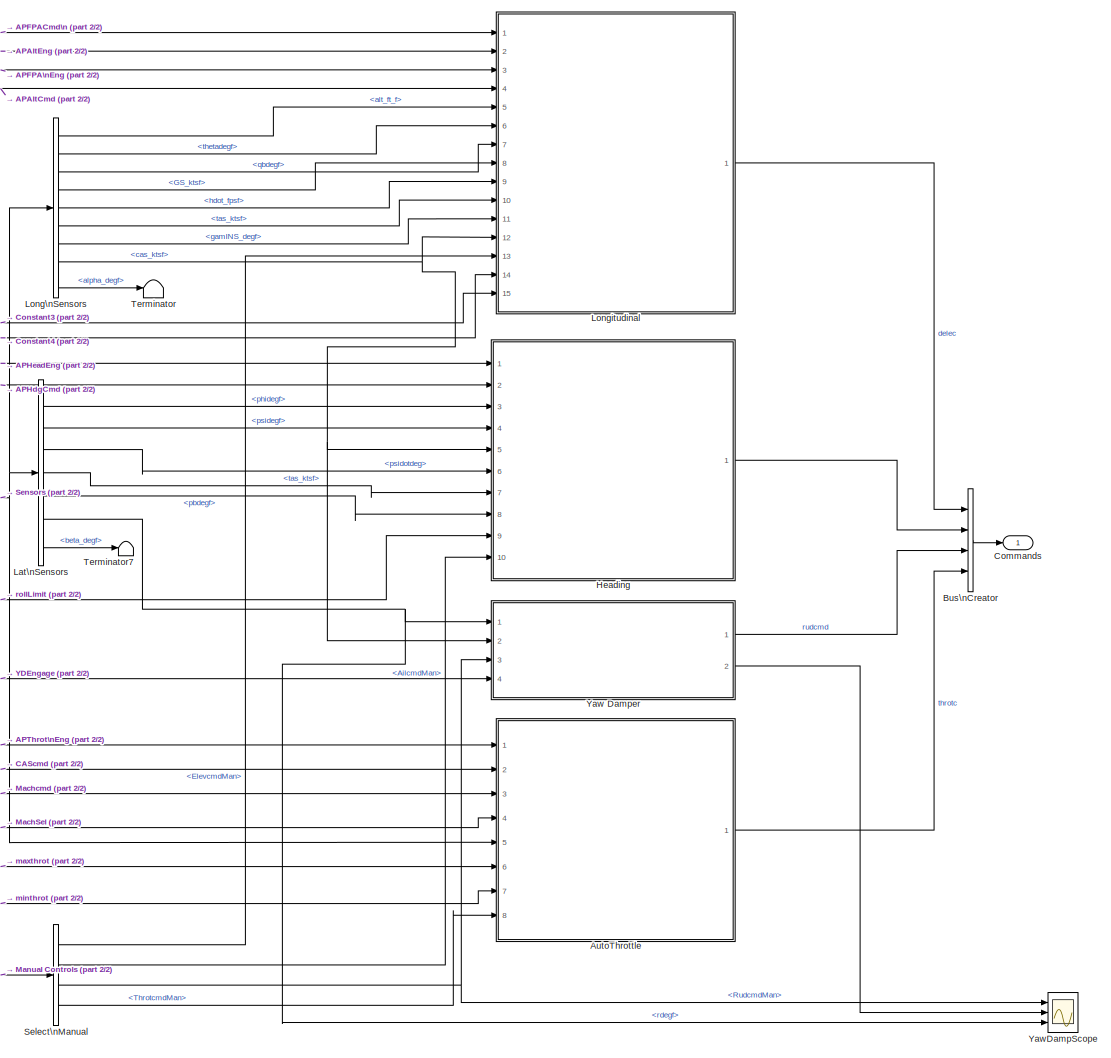
[diagram: root canvas - part 1/2, center side, full height]
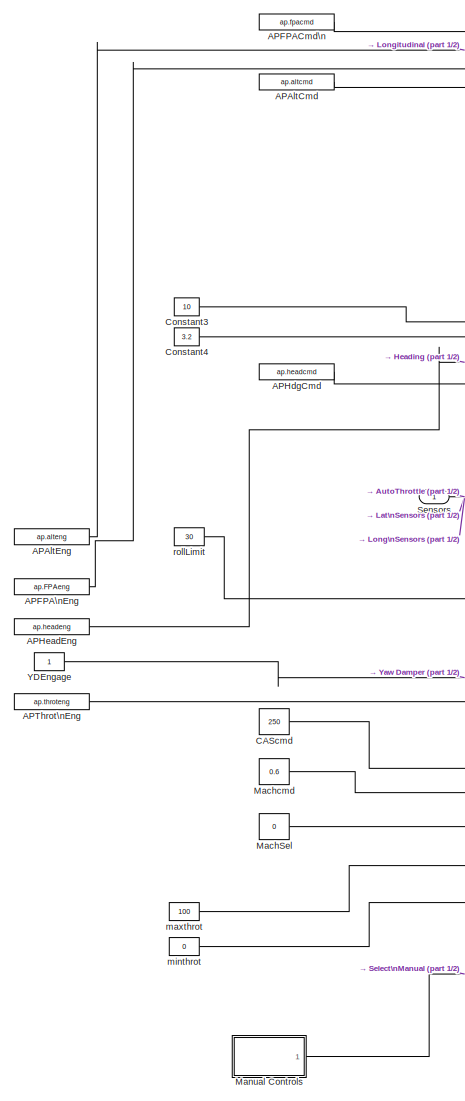
[diagram: root canvas - part 2/2, left side, full height]
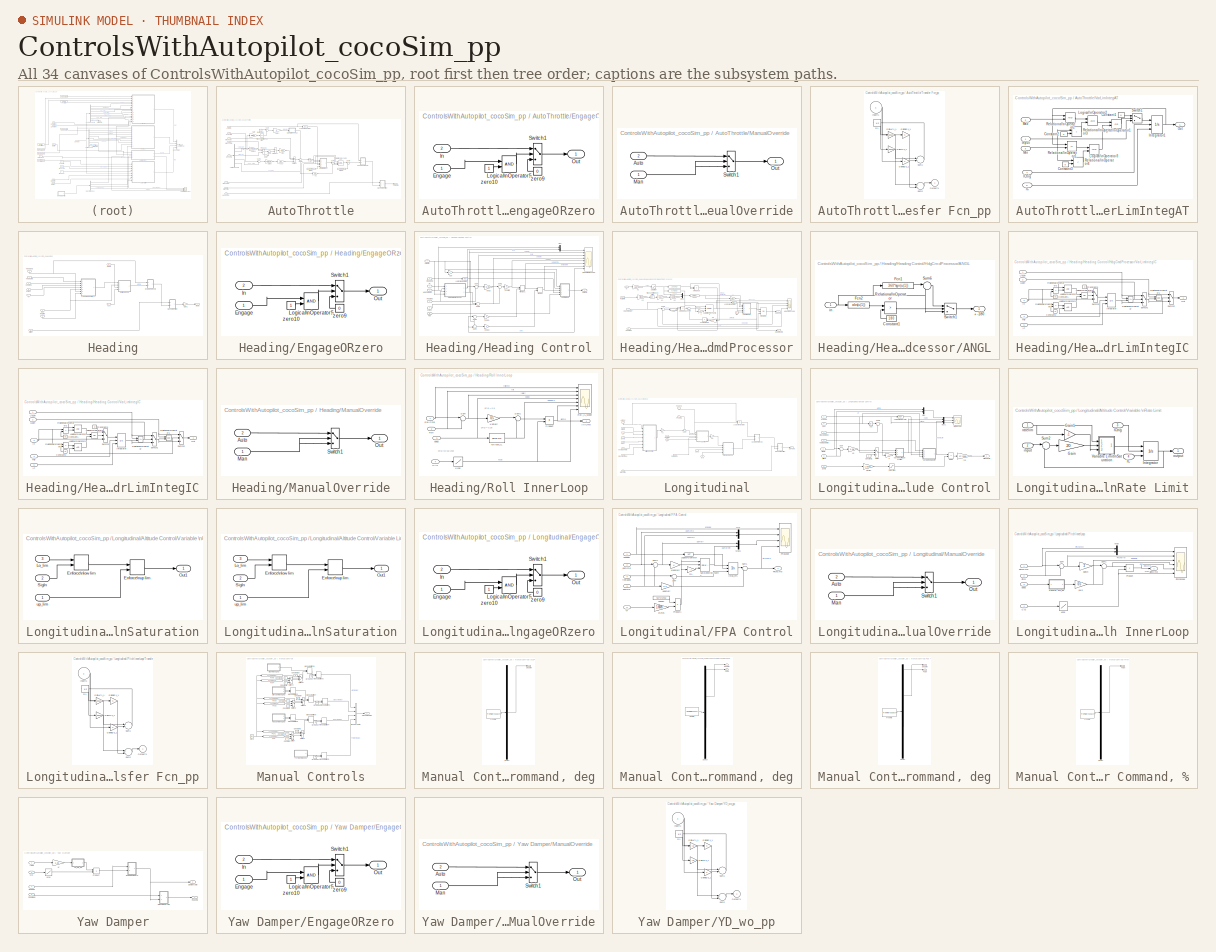
[diagram: thumbnail index - all 34 canvases of the model, root first then tree order]
MODEL ControlsWithAutopilot_cocoSim_pp
KIND model
BLOCK [Constant] APAltCmd
  SID = 2
  Value = ap.altcmd
BLOCK [Constant] APAltEng
  OutDataTypeStr = boolean
  SID = 3
  Value = ap.alteng
BLOCK [Constant] APFPACmd\n
  SID = 5
  Value = ap.fpacmd
BLOCK [Constant] APFPA\nEng
  OutDataTypeStr = boolean
  SID = 4
  Value = ap.FPAeng
BLOCK [Constant] APHdgCmd
  SID = 6
  Value = ap.headcmd
BLOCK [Constant] APHeadEng
  OutDataTypeStr = boolean
  SID = 7
  Value = ap.headeng
BLOCK [Constant] APThrot\nEng
  OutDataTypeStr = boolean
  SID = 8
  Value = ap.throteng
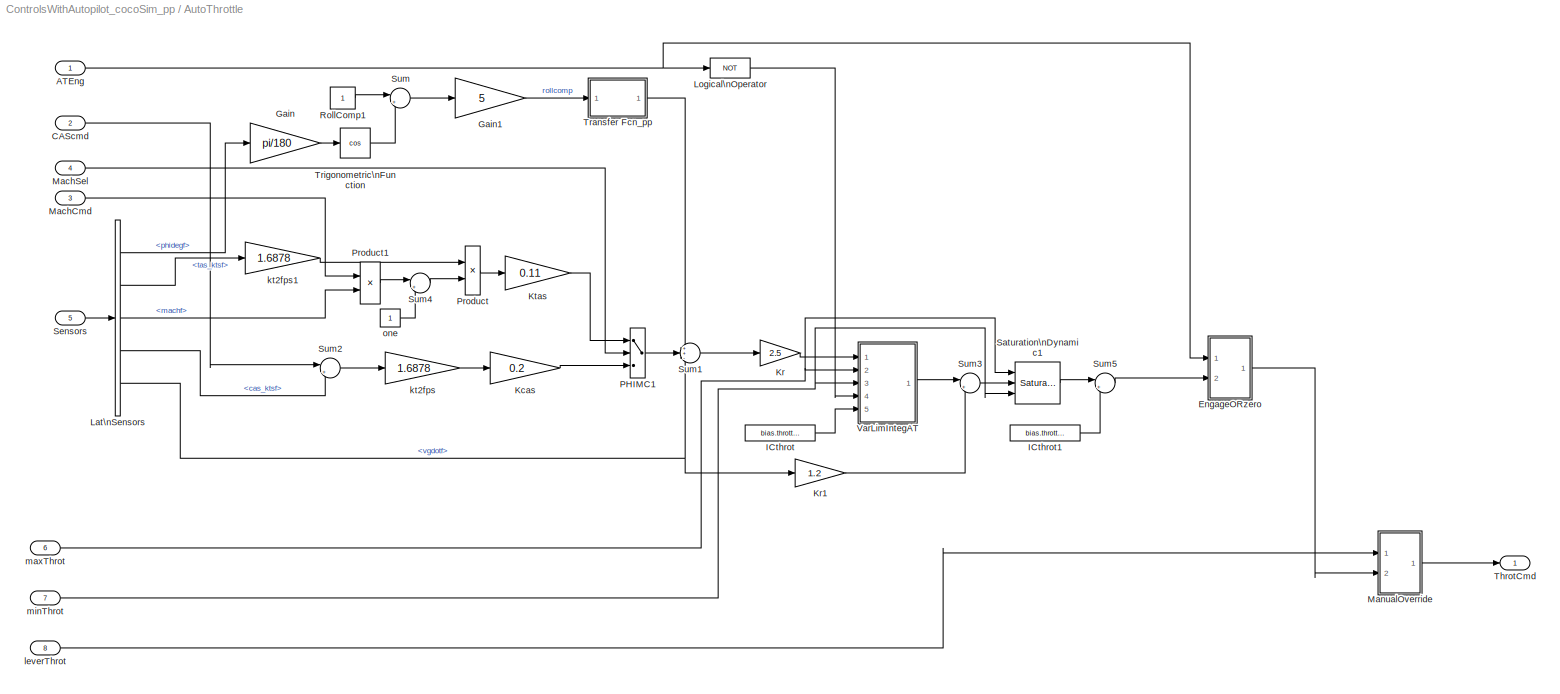
BLOCK [SubSystem] AutoThrottle
  Ports = [8, 1]
  RequestExecContextInheritance = off
  SID = 59
  Variant = off
BLOCK [Inport] AutoThrottle/ATEng
  IconDisplay = Port number
  SID = 60
BLOCK [Inport] AutoThrottle/CAScmd
  IconDisplay = Port number
  Port = 2
  SID = 61
BLOCK [SubSystem] AutoThrottle/EngageORzero
  Ports = [2, 1]
  RequestExecContextInheritance = off
  SID = 609
  Variant = off
BLOCK [Inport] AutoThrottle/EngageORzero/Engage
  IconDisplay = Port number
  SID = 610
BLOCK [Inport] AutoThrottle/EngageORzero/In
  IconDisplay = Port number
  Port = 2
  SID = 611
BLOCK [Logic] AutoThrottle/EngageORzero/Logical\nOperator5
  AllPortsSameDT = off
  OutDataTypeStr = boolean
  Ports = [2, 1]
  SID = 612
BLOCK [Outport] AutoThrottle/EngageORzero/Out
  IconDisplay = Port number
  SID = 616
BLOCK [Switch] AutoThrottle/EngageORzero/Switch1
  InputSameDT = off
  SID = 613
  SaturateOnIntegerOverflow = off
  Threshold = 0.5
BLOCK [Constant] AutoThrottle/EngageORzero/zero10
  SID = 614
BLOCK [Constant] AutoThrottle/EngageORzero/zero9
  SID = 615
  Value = 0
BLOCK [Gain] AutoThrottle/Gain
  Gain = pi/180
  OutDataTypeStr = Inherit: Inherit via internal rule
  ParamDataTypeStr = Inherit: Inherit via internal rule
  SID = 65
  SaturateOnIntegerOverflow = off
BLOCK [Gain] AutoThrottle/Gain1
  Gain = 5
  OutDataTypeStr = Inherit: Inherit via internal rule
  ParamDataTypeStr = Inherit: Inherit via internal rule
  SID = 66
  SaturateOnIntegerOverflow = off
BLOCK [Constant] AutoThrottle/ICthrot
  SID = 67
  SampleTime = -1
  Value = bias.throttle
BLOCK [Constant] AutoThrottle/ICthrot1
  SID = 68
  SampleTime = -1
  Value = bias.throttle
BLOCK [Gain] AutoThrottle/Kcas
  Gain = 0.2
  OutDataTypeStr = Inherit: Inherit via internal rule
  ParamDataTypeStr = Inherit: Inherit via internal rule
  SID = 69
  SaturateOnIntegerOverflow = off
BLOCK [Gain] AutoThrottle/Kr
  Gain = 2.5
  OutDataTypeStr = Inherit: Inherit via internal rule
  ParamDataTypeStr = Inherit: Inherit via internal rule
  SID = 70
  SaturateOnIntegerOverflow = off
BLOCK [Gain] AutoThrottle/Kr1
  Gain = 1.2
  OutDataTypeStr = Inherit: Inherit via internal rule
  ParamDataTypeStr = Inherit: Inherit via internal rule
  SID = 71
  SaturateOnIntegerOverflow = off
BLOCK [Gain] AutoThrottle/Ktas
  Gain = 0.11
  OutDataTypeStr = Inherit: Inherit via internal rule
  ParamDataTypeStr = Inherit: Inherit via internal rule
  SID = 72
  SaturateOnIntegerOverflow = off
BLOCK [BusSelector] AutoThrottle/Lat\nSensors
  OutputSignals = phidegf,tas_ktsf,machf,cas_ktsf,vgdotf
  Ports = [1, 5]
  SID = 73
BLOCK [Logic] AutoThrottle/Logical\nOperator
  AllPortsSameDT = off
  Operator = NOT
  OutDataTypeStr = boolean
  Ports = [1, 1]
  SID = 74
BLOCK [Inport] AutoThrottle/MachCmd
  IconDisplay = Port number
  Port = 3
  SID = 62
BLOCK [Inport] AutoThrottle/MachSel
  IconDisplay = Port number
  Port = 4
  SID = 63
BLOCK [SubSystem] AutoThrottle/ManualOverride
  Ports = [2, 1]
  RequestExecContextInheritance = off
  SID = 558
  Variant = off
BLOCK [Inport] AutoThrottle/ManualOverride/Auto
  IconDisplay = Port number
  Port = 2
  SID = 560
BLOCK [Inport] AutoThrottle/ManualOverride/Man
  IconDisplay = Port number
  SID = 559
BLOCK [Outport] AutoThrottle/ManualOverride/Out
  IconDisplay = Port number
  SID = 562
BLOCK [Switch] AutoThrottle/ManualOverride/Switch1
  Criteria = u2 ~= 0
  InputSameDT = off
  SID = 561
  SaturateOnIntegerOverflow = off
  Threshold = 0.5
BLOCK [Switch] AutoThrottle/PHIMC1
  InputSameDT = off
  SID = 75
  SampleTime = 0.02
  Threshold = 0.5
BLOCK [Product] AutoThrottle/Product
  InputSameDT = off
  OutDataTypeStr = Inherit: Inherit via internal rule
  Ports = [2, 1]
  SID = 76
  SaturateOnIntegerOverflow = off
BLOCK [Product] AutoThrottle/Product1
  InputSameDT = off
  Inputs = */
  OutDataTypeStr = Inherit: Inherit via internal rule
  Ports = [2, 1]
  SID = 77
  SaturateOnIntegerOverflow = off
BLOCK [Constant] AutoThrottle/RollComp1
  SID = 78
  SampleTime = -1
BLOCK [Reference] AutoThrottle/Saturation\nDynamic1  REF=simulink/Discontinuities/Saturation\nDynamic
  DoSatur = off
  LockScale = off
  OutDataType = sfix(16)
  OutDataTypeStr = Inherit: Same as second input
  OutMax = []
  OutMin = []
  OutScaling = 2^-10
  OutputDataTypeScalingMode = Same as second input
  Ports = [3, 1]
  RndMeth = Floor
  SID = 79
  SourceBlock = simulink/Discontinuities/Saturation\nDynamic
  SourceType = Saturation Dynamic
BLOCK [Inport] AutoThrottle/Sensors
  IconDisplay = Port number
  Port = 5
  SID = 64
BLOCK [Sum] AutoThrottle/Sum
  IconShape = round
  InputSameDT = off
  Inputs = |+-
  OutDataTypeStr = Inherit: Inherit via internal rule
  Ports = [2, 1]
  SID = 80
  SaturateOnIntegerOverflow = off
BLOCK [Sum] AutoThrottle/Sum1
  IconShape = round
  InputSameDT = off
  Inputs = ++-
  OutDataTypeStr = Inherit: Inherit via internal rule
  Ports = [3, 1]
  SID = 81
  SaturateOnIntegerOverflow = off
BLOCK [Sum] AutoThrottle/Sum2
  IconShape = round
  InputSameDT = off
  Inputs = |+-
  OutDataTypeStr = Inherit: Inherit via internal rule
  Ports = [2, 1]
  SID = 82
  SaturateOnIntegerOverflow = off
BLOCK [Sum] AutoThrottle/Sum3
  IconShape = round
  InputSameDT = off
  Inputs = |+-
  OutDataTypeStr = Inherit: Inherit via internal rule
  Ports = [2, 1]
  SID = 83
  SaturateOnIntegerOverflow = off
BLOCK [Sum] AutoThrottle/Sum4
  IconShape = round
  InputSameDT = off
  Inputs = |+-
  OutDataTypeStr = Inherit: Inherit via internal rule
  Ports = [2, 1]
  SID = 84
  SaturateOnIntegerOverflow = off
BLOCK [Sum] AutoThrottle/Sum5
  IconShape = round
  InputSameDT = off
  Inputs = |+-
  OutDataTypeStr = Inherit: Inherit via internal rule
  Ports = [2, 1]
  SID = 85
  SaturateOnIntegerOverflow = off
BLOCK [Outport] AutoThrottle/ThrotCmd
  IconDisplay = Port number
  SID = 112
BLOCK [SubSystem] AutoThrottle/Transfer Fcn_pp
  Ports = [1, 1]
  RequestExecContextInheritance = off
  SID = 675
  TreatAsAtomicUnit = on
  Variant = off
BLOCK [UnitDelay] AutoThrottle/Transfer Fcn_pp/D1
  SID = 676
  SampleTime = -1
BLOCK [Gain] AutoThrottle/Transfer Fcn_pp/GainAC1_1
  Gain = -0.0625
  SID = 677
BLOCK [Gain] AutoThrottle/Transfer Fcn_pp/GainAC2_1
  Gain = -0.0625
  SID = 678
BLOCK [Gain] AutoThrottle/Transfer Fcn_pp/GainBD1_1
  SID = 679
BLOCK [Gain] AutoThrottle/Transfer Fcn_pp/GainBD2_1
  SID = 680
BLOCK [Inport] AutoThrottle/Transfer Fcn_pp/Inport1
  IconDisplay = Port number
  SID = 683
BLOCK [Outport] AutoThrottle/Transfer Fcn_pp/Outport1
  IconDisplay = Port number
  SID = 684
BLOCK [Sum] AutoThrottle/Transfer Fcn_pp/Sum1
  Ports = [2, 1]
  SID = 681
BLOCK [Sum] AutoThrottle/Transfer Fcn_pp/Sum2
  Ports = [2, 1]
  SID = 682
BLOCK [Trigonometry] AutoThrottle/Trigonometric\nFunction
  Operator = cos
  Ports = [1, 1]
  SID = 87
BLOCK [SubSystem] AutoThrottle/VarLimIntegAT
  Ports = [5, 1]
  RequestExecContextInheritance = off
  SID = 88
  Variant = off
BLOCK [Constant] AutoThrottle/VarLimIntegAT/Constant1
  SID = 94
  SampleTime = -1
  Value = 0
BLOCK [Constant] AutoThrottle/VarLimIntegAT/Constant2
  SID = 95
  SampleTime = -1
  Value = 0
BLOCK [Constant] AutoThrottle/VarLimIntegAT/Constant3
  SID = 96
  SampleTime = -1
  Value = 0
BLOCK [Inport] AutoThrottle/VarLimIntegAT/IC
  IconDisplay = Port number
  Port = 5
  SID = 93
BLOCK [Inport] AutoThrottle/VarLimIntegAT/ICtrig
  IconDisplay = Port number
  Port = 4
  SID = 92
BLOCK [Inport] AutoThrottle/VarLimIntegAT/Input
  IconDisplay = Port number
  SID = 89
BLOCK [Integrator] AutoThrottle/VarLimIntegAT/Integrator1
  ExternalReset = level
  InitialConditionSource = external
  Ports = [3, 1]
  SID = 97
BLOCK [Logic] AutoThrottle/VarLimIntegAT/Logical\nOperator1
  Operator = OR
  Ports = [2, 1]
  SID = 98
BLOCK [Logic] AutoThrottle/VarLimIntegAT/Logical\nOperator2
  Ports = [2, 1]
  SID = 99
BLOCK [Logic] AutoThrottle/VarLimIntegAT/Logical\nOperator3
  Ports = [2, 1]
  SID = 100
BLOCK [Inport] AutoThrottle/VarLimIntegAT/Max
  IconDisplay = Port number
  Port = 2
  SID = 90
BLOCK [Inport] AutoThrottle/VarLimIntegAT/Min
  IconDisplay = Port number
  Port = 3
  SID = 91
BLOCK [Outport] AutoThrottle/VarLimIntegAT/Out
  IconDisplay = Port number
  SID = 106
BLOCK [RelationalOperator] AutoThrottle/VarLimIntegAT/Relational\nOperator1
  Operator = <=
  Ports = [2, 1]
  SID = 101
BLOCK [RelationalOperator] AutoThrottle/VarLimIntegAT/Relational\nOperator2
  Ports = [2, 1]
  SID = 102
BLOCK [RelationalOperator] AutoThrottle/VarLimIntegAT/Relational\nOperator3
  Operator = >
  Ports = [2, 1]
  SID = 103
BLOCK [RelationalOperator] AutoThrottle/VarLimIntegAT/Relational\nOperator4
  Operator = <
  Ports = [2, 1]
  SID = 104
BLOCK [Switch] AutoThrottle/VarLimIntegAT/Switch1
  SID = 105
  Threshold = 0.1
BLOCK [Gain] AutoThrottle/kt2fps
  Gain = 1.6878
  OutDataTypeStr = Inherit: Inherit via internal rule
  ParamDataTypeStr = Inherit: Inherit via internal rule
  SID = 107
  SaturateOnIntegerOverflow = off
BLOCK [Gain] AutoThrottle/kt2fps1
  Gain = 1.6878
  OutDataTypeStr = Inherit: Inherit via internal rule
  ParamDataTypeStr = Inherit: Inherit via internal rule
  SID = 108
  SaturateOnIntegerOverflow = off
BLOCK [Inport] AutoThrottle/leverThrot
  IconDisplay = Port number
  Port = 8
  SID = 567
BLOCK [Inport] AutoThrottle/maxThrot
  IconDisplay = Port number
  Port = 6
  SID = 565
BLOCK [Inport] AutoThrottle/minThrot
  IconDisplay = Port number
  Port = 7
  SID = 566
BLOCK [Constant] AutoThrottle/one
  SID = 111
  SampleTime = -1
BLOCK [BusCreator] Bus\nCreator
  DisplayOption = bar
  InheritFromInputs = on
  Inputs = 4
  Ports = [4, 1]
  SID = 113
BLOCK [Constant] CAScmd
  SID = 114
  Value = 250
BLOCK [Outport] Commands
  IconDisplay = Port number
  SID = 449
BLOCK [Constant] Constant3
  SID = 603
  Value = 10
BLOCK [Constant] Constant4
  SID = 604
  Value = 3.2
BLOCK [SubSystem] Heading
  Ports = [10, 1]
  RequestExecContextInheritance = off
  SID = 516
  Variant = off
BLOCK [Outport] Heading/AilCmd
  IconDisplay = Port number
  SID = 525
BLOCK [Inport] Heading/AilStick
  IconDisplay = Port number
  Port = 10
  SID = 557
BLOCK [Inport] Heading/CAS
  IconDisplay = Port number
  Port = 5
  SID = 521
BLOCK [SubSystem] Heading/EngageORzero
  Ports = [2, 1]
  RequestExecContextInheritance = off
  SID = 585
  Variant = off
BLOCK [Inport] Heading/EngageORzero/Engage
  IconDisplay = Port number
  SID = 586
BLOCK [Inport] Heading/EngageORzero/In
  IconDisplay = Port number
  Port = 2
  SID = 587
BLOCK [Logic] Heading/EngageORzero/Logical\nOperator5
  AllPortsSameDT = off
  OutDataTypeStr = boolean
  Ports = [2, 1]
  SID = 588
BLOCK [Outport] Heading/EngageORzero/Out
  IconDisplay = Port number
  SID = 592
BLOCK [Switch] Heading/EngageORzero/Switch1
  InputSameDT = off
  SID = 589
  SaturateOnIntegerOverflow = off
  Threshold = 0.5
BLOCK [Constant] Heading/EngageORzero/zero10
  SID = 590
BLOCK [Constant] Heading/EngageORzero/zero9
  SID = 591
  Value = 0
BLOCK [Gain] Heading/Gain1
  Gain = -1
  SID = 584
BLOCK [Inport] Heading/HeadCmd
  IconDisplay = Port number
  Port = 2
  SID = 518
BLOCK [Inport] Heading/HeadEng
  IconDisplay = Port number
  SID = 517
BLOCK [Inport] Heading/Heading
  IconDisplay = Port number
  Port = 4
  SID = 520
BLOCK [SubSystem] Heading/Heading Control
  Ports = [7, 1]
  RequestExecContextInheritance = off
  SID = 145
  Variant = off
BLOCK [Inport] Heading/Heading Control/HdgCmdMCP
  IconDisplay = Port number
  SID = 146
BLOCK [SubSystem] Heading/Heading Control/HdgCmdProcessor
  Ports = [4, 2]
  RequestExecContextInheritance = off
  SID = 154
  Variant = off
BLOCK [Product] Heading/Heading Control/HdgCmdProcessor/2zetaOmega
  InputSameDT = off
  OutDataTypeStr = Inherit: Inherit via internal rule
  Ports = [2, 1]
  SID = 158
  SaturateOnIntegerOverflow = off
BLOCK [SubSystem] Heading/Heading Control/HdgCmdProcessor/ANGL
  Ports = [1, 1]
  RequestExecContextInheritance = off
  SID = 159
  Variant = off
BLOCK [Outport] Heading/Heading Control/HdgCmdProcessor/ANGL/+ -180
  IconDisplay = Port number
  SID = 167
BLOCK [Constant] Heading/Heading Control/HdgCmdProcessor/ANGL/Constant1
  SID = 161
  Value = 180
BLOCK [Fcn] Heading/Heading Control/HdgCmdProcessor/ANGL/Fcn1
  Expr = 360*sgn(u(1))
  SID = 162
BLOCK [Fcn] Heading/Heading Control/HdgCmdProcessor/ANGL/Fcn2
  Expr = abs(u(1))
  SID = 163
BLOCK [RelationalOperator] Heading/Heading Control/HdgCmdProcessor/ANGL/Relational\nOperator
  InputSameDT = off
  Operator = >
  Ports = [2, 1]
  SID = 164
BLOCK [Sum] Heading/Heading Control/HdgCmdProcessor/ANGL/Sum6
  IconShape = round
  InputSameDT = off
  Inputs = |-+
  OutDataTypeStr = Inherit: Inherit via internal rule
  Ports = [2, 1]
  SID = 165
BLOCK [Switch] Heading/Heading Control/HdgCmdProcessor/ANGL/Switch1
  InputSameDT = off
  SID = 166
  Threshold = 0.1
BLOCK [Inport] Heading/Heading Control/HdgCmdProcessor/ANGL/in
  IconDisplay = Port number
  SID = 160
BLOCK [Fcn] Heading/Heading Control/HdgCmdProcessor/Fcn
  Expr = 1.6 - 0.0*u(1)
  SID = 168
BLOCK [Fcn] Heading/Heading Control/HdgCmdProcessor/Fcn1
  Expr = 514.8/u(1)
  SID = 169
BLOCK [Fcn] Heading/Heading Control/HdgCmdProcessor/Fcn2
  Expr = u(2)/u(1)
  SID = 170
BLOCK [Outport] Heading/Heading Control/HdgCmdProcessor/HdgCmd
  IconDisplay = Port number
  SID = 217
BLOCK [Inport] Heading/Heading Control/HdgCmdProcessor/HdgCmdMCP
  IconDisplay = Port number
  Port = 2
  SID = 156
BLOCK [Scope] Heading/Heading Control/HdgCmdProcessor/HdgCmdScope
  NumInputPorts = 4
  Ports = [4]
  SID = 177
  ScopeSpecificationString = C++SS(StrPVP('Location','[661, 662, 1361, 1168]'),StrPVP('Open','off'),MxPVP('AxesTitles',24,'struct(''axes1'',''%<SignalLabel>'',''axes2'',''%<SignalLabel>'',''axes3'',''%<SignalLabel>'',''axes4'',''%<SignalLabel>'')'),MxPVP('ScopeGraphics',28,'struct(''FigureColor'',''[0.5 0.5 0.5]'',''AxesColor'',''[0 0 0]'',''AxesTickColor'',''[1 1 1]'',''LineColors'',''[1 1 0;1 0 1;0 1 1;1 0 0;0 1 0;0 0 1]'',...<+391ch>
BLOCK [Outport] Heading/Heading Control/HdgCmdProcessor/HdgRteCmd
  IconDisplay = Port number
  Port = 2
  SID = 218
BLOCK [Inport] Heading/Heading Control/HdgCmdProcessor/Heading
  IconDisplay = Port number
  Port = 3
  SID = 157
BLOCK [Integrator] Heading/Heading Control/HdgCmdProcessor/Integrator1
  ExternalReset = level
  InitialConditionSource = external
  Ports = [3, 1]
  SID = 178
BLOCK [Logic] Heading/Heading Control/HdgCmdProcessor/Logical\nOperator
  AllPortsSameDT = off
  Operator = NOT
  OutDataTypeStr = boolean
  Ports = [1, 1]
  SID = 179
BLOCK [Mux] Heading/Heading Control/HdgCmdProcessor/Mux1
  DisplayOption = bar
  Inputs = 2
  Ports = [2, 1]
  SID = 180
BLOCK [Inport] Heading/Heading Control/HdgCmdProcessor/RollLimit
  IconDisplay = Port number
  Port = 4
  SID = 527
BLOCK [Saturate] Heading/Heading Control/HdgCmdProcessor/Saturation
  InputPortMap = u0
  LowerLimit = 0.0001
  Ports = [1, 1]
  SID = 181
  UpperLimit = 1000
BLOCK [Reference] Heading/Heading Control/HdgCmdProcessor/Saturation\nDynamic1  REF=simulink/Discontinuities/Saturation\nDynamic
  DoSatur = off
  LockScale = off
  OutDataType = fixdt(1, 16)
  OutDataTypeStr = Inherit: Same as second input
  OutMax = []
  OutMin = []
  OutScaling = 2^-10
  OutputDataTypeScalingMode = Same as second input
  Ports = [3, 1]
  RndMeth = Floor
  SID = 182
  SourceBlock = simulink/Discontinuities/Saturation\nDynamic
  SourceType = Saturation Dynamic
BLOCK [Sum] Heading/Heading Control/HdgCmdProcessor/Sum2
  IconShape = round
  InputSameDT = off
  Inputs = |+-
  OutDataTypeStr = Inherit: Inherit via internal rule
  Ports = [2, 1]
  SID = 183
  SaturateOnIntegerOverflow = off
BLOCK [Sum] Heading/Heading Control/HdgCmdProcessor/Sum3
  IconShape = round
  InputSameDT = off
  Inputs = |+-
  OutDataTypeStr = Inherit: Inherit via internal rule
  Ports = [2, 1]
  SID = 184
  SaturateOnIntegerOverflow = off
BLOCK [Trigonometry] Heading/Heading Control/HdgCmdProcessor/Trigonometric\nFunction
  Operator = tan
  Ports = [1, 1]
  SID = 185
BLOCK [SubSystem] Heading/Heading Control/HdgCmdProcessor/VarLimIntegIC
  Ports = [5, 1]
  RequestExecContextInheritance = off
  SID = 186
  Variant = off
BLOCK [Constant] Heading/Heading Control/HdgCmdProcessor/VarLimIntegIC/Constant1
  SID = 192
  Value = 0
BLOCK [Constant] Heading/Heading Control/HdgCmdProcessor/VarLimIntegIC/Constant2
  SID = 193
  Value = 0
BLOCK [Constant] Heading/Heading Control/HdgCmdProcessor/VarLimIntegIC/Constant3
  SID = 194
  Value = 0
BLOCK [Inport] Heading/Heading Control/HdgCmdProcessor/VarLimIntegIC/IC
  IconDisplay = Port number
  Port = 5
  SID = 191
BLOCK [Inport] Heading/Heading Control/HdgCmdProcessor/VarLimIntegIC/In
  IconDisplay = Port number
  Port = 3
  SID = 189
BLOCK [Integrator] Heading/Heading Control/HdgCmdProcessor/VarLimIntegIC/Integrator
  ExternalReset = level
  InitialConditionSource = external
  Ports = [3, 1]
  SID = 195
BLOCK [Inport] Heading/Heading Control/HdgCmdProcessor/VarLimIntegIC/LoLim
  IconDisplay = Port number
  Port = 2
  SID = 188
BLOCK [Logic] Heading/Heading Control/HdgCmdProcessor/VarLimIntegIC/Logical\nOperator
  AllPortsSameDT = off
  Ports = [2, 1]
  SID = 196
BLOCK [Logic] Heading/Heading Control/HdgCmdProcessor/VarLimIntegIC/Logical\nOperator1
  AllPortsSameDT = off
  Ports = [2, 1]
  SID = 197
BLOCK [Logic] Heading/Heading Control/HdgCmdProcessor/VarLimIntegIC/Logical\nOperator2
  AllPortsSameDT = off
  Operator = OR
  Ports = [2, 1]
  SID = 198
BLOCK [Outport] Heading/Heading Control/HdgCmdProcessor/VarLimIntegIC/Out
  IconDisplay = Port number
  SID = 206
BLOCK [RelationalOperator] Heading/Heading Control/HdgCmdProcessor/VarLimIntegIC/Relational\nOperator
  InputSameDT = off
  Operator = <=
  Ports = [2, 1]
  SID = 199
BLOCK [RelationalOperator] Heading/Heading Control/HdgCmdProcessor/VarLimIntegIC/Relational\nOperator1
  InputSameDT = off
  Ports = [2, 1]
  SID = 200
BLOCK [RelationalOperator] Heading/Heading Control/HdgCmdProcessor/VarLimIntegIC/Relational\nOperator2
  InputSameDT = off
  Operator = >
  Ports = [2, 1]
  SID = 201
BLOCK [RelationalOperator] Heading/Heading Control/HdgCmdProcessor/VarLimIntegIC/Relational\nOperator3
  InputSameDT = off
  Operator = <
  Ports = [2, 1]
  SID = 202
BLOCK [Switch] Heading/Heading Control/HdgCmdProcessor/VarLimIntegIC/Switch1
  SID = 203
  Threshold = 0.5
BLOCK [Switch] Heading/Heading Control/HdgCmdProcessor/VarLimIntegIC/Switch2
  SID = 204
  Threshold = 0.5
BLOCK [Switch] Heading/Heading Control/HdgCmdProcessor/VarLimIntegIC/Switch3
  SID = 205
  Threshold = 0.5
BLOCK [Inport] Heading/Heading Control/HdgCmdProcessor/VarLimIntegIC/Trig
  IconDisplay = Port number
  Port = 4
  SID = 190
BLOCK [Inport] Heading/Heading Control/HdgCmdProcessor/VarLimIntegIC/UpLim
  IconDisplay = Port number
  SID = 187
BLOCK [Inport] Heading/Heading Control/HdgCmdProcessor/Vt
  IconDisplay = Port number
  SID = 155
BLOCK [Constant] Heading/Heading Control/HdgCmdProcessor/init
  SID = 207
  Value = 0
BLOCK [Gain] Heading/Heading Control/HdgCmdProcessor/k
  Gain = -1.0
  OutDataTypeStr = Inherit: Inherit via internal rule
  ParamDataTypeStr = Inherit: Inherit via internal rule
  SID = 208
  SaturateOnIntegerOverflow = off
BLOCK [Gain] Heading/Heading Control/HdgCmdProcessor/k1
  Gain = -1.0
  OutDataTypeStr = Inherit: Inherit via internal rule
  ParamDataTypeStr = Inherit: Inherit via internal rule
  SID = 209
  SaturateOnIntegerOverflow = off
BLOCK [Gain] Heading/Heading Control/HdgCmdProcessor/k2
  Gain = 1.6878
  OutDataTypeStr = Inherit: Inherit via internal rule
  ParamDataTypeStr = Inherit: Inherit via internal rule
  SID = 210
  SaturateOnIntegerOverflow = off
BLOCK [Gain] Heading/Heading Control/HdgCmdProcessor/k3
  Gain = pi/180
  OutDataTypeStr = Inherit: Inherit via internal rule
  ParamDataTypeStr = Inherit: Inherit via internal rule
  SID = 211
  SaturateOnIntegerOverflow = off
BLOCK [Gain] Heading/Heading Control/HdgCmdProcessor/k4
  Gain = 32.174
  OutDataTypeStr = Inherit: Inherit via internal rule
  ParamDataTypeStr = Inherit: Inherit via internal rule
  SID = 212
  SaturateOnIntegerOverflow = off
BLOCK [Gain] Heading/Heading Control/HdgCmdProcessor/k5
  Gain = 180/pi
  OutDataTypeStr = Inherit: Inherit via internal rule
  ParamDataTypeStr = Inherit: Inherit via internal rule
  SID = 213
  SaturateOnIntegerOverflow = off
BLOCK [Gain] Heading/Heading Control/HdgCmdProcessor/k6
  Gain = 2
  OutDataTypeStr = Inherit: Inherit via internal rule
  ParamDataTypeStr = Inherit: Inherit via internal rule
  SID = 214
  SaturateOnIntegerOverflow = off
BLOCK [Product] Heading/Heading Control/HdgCmdProcessor/omegaSq
  InputSameDT = off
  OutDataTypeStr = Inherit: Inherit via internal rule
  Ports = [2, 1]
  SID = 215
  SaturateOnIntegerOverflow = off
BLOCK [Product] Heading/Heading Control/HdgCmdProcessor/omegaSq2
  InputSameDT = off
  OutDataTypeStr = Inherit: Inherit via internal rule
  Ports = [2, 1]
  SID = 216
  SaturateOnIntegerOverflow = off
BLOCK [Scope] Heading/Heading Control/HdgRollCmdScope
  NumInputPorts = 8
  Ports = [8]
  SID = 219
  ScopeSpecificationString = C++SS(StrPVP('Location','[803, 84, 1609, 1060]'),StrPVP('Open','off'),MxPVP('AxesTitles',24,'struct(''axes1'',''HdgCmdMCP,  psic'',''axes2'',''%<SignalLabel>'',''axes3'',''%<SignalLabel>'',''axes4'',''%<SignalLabel>'',''axes5'',''%<SignalLabel>'',''axes6'',''%<SignalLabel>'',''axes7'',''%<SignalLabel>'',''axes8'',''%<SignalLabel>'')'),MxPVP('ScopeGraphics',28,'struct(''FigureColor'',''[0.5 0.5 0.5...<+533ch>
BLOCK [Inport] Heading/Heading Control/HeadEng
  IconDisplay = Port number
  Port = 6
  SID = 453
BLOCK [Inport] Heading/Heading Control/Heading
  IconDisplay = Port number
  Port = 2
  SID = 147
BLOCK [Gain] Heading/Heading Control/Khdg
  Gain = 0.05
  OutDataTypeStr = Inherit: Inherit via internal rule
  ParamDataTypeStr = Inherit: Inherit via internal rule
  SID = 220
  SaturateOnIntegerOverflow = off
BLOCK [Gain] Heading/Heading Control/Khdg1
  OutDataTypeStr = Inherit: Inherit via internal rule
  ParamDataTypeStr = Inherit: Inherit via internal rule
  SID = 221
  SaturateOnIntegerOverflow = off
BLOCK [Gain] Heading/Heading Control/Khdg2
  OutDataTypeStr = Inherit: Inherit via internal rule
  ParamDataTypeStr = Inherit: Inherit via internal rule
  SID = 222
  SaturateOnIntegerOverflow = off
BLOCK [Gain] Heading/Heading Control/Khdgrte
  Gain = 3
  OutDataTypeStr = Inherit: Inherit via internal rule
  ParamDataTypeStr = Inherit: Inherit via internal rule
  SID = 223
  SaturateOnIntegerOverflow = off
BLOCK [Logic] Heading/Heading Control/Logical\nOperator
  AllPortsSameDT = off
  Operator = NOT
  OutDataTypeStr = boolean
  Ports = [1, 1]
  SID = 224
BLOCK [MinMax] Heading/Heading Control/MinMax
  InputSameDT = off
  Inputs = 2
  Ports = [2, 1]
  SID = 225
  SaturateOnIntegerOverflow = off
BLOCK [MinMax] Heading/Heading Control/MinMax1
  Function = max
  InputSameDT = off
  Inputs = 2
  Ports = [2, 1]
  SID = 226
  SaturateOnIntegerOverflow = off
BLOCK [Mux] Heading/Heading Control/Mux
  DisplayOption = bar
  Inputs = 2
  Ports = [2, 1]
  SID = 227
BLOCK [Inport] Heading/Heading Control/Roll
  IconDisplay = Port number
  Port = 5
  SID = 150
BLOCK [Outport] Heading/Heading Control/RollCmd
  IconDisplay = Port number
  SID = 255
BLOCK [Inport] Heading/Heading Control/RollLimit
  IconDisplay = Port number
  Port = 7
  SID = 526
BLOCK [Sum] Heading/Heading Control/Sum
  IconShape = round
  InputSameDT = off
  Inputs = |+-
  OutDataTypeStr = Inherit: Inherit via internal rule
  Ports = [2, 1]
  SID = 228
  SaturateOnIntegerOverflow = off
BLOCK [Sum] Heading/Heading Control/Sum1
  IconShape = round
  InputSameDT = off
  Inputs = |++
  OutDataTypeStr = Inherit: Inherit via internal rule
  Ports = [2, 1]
  SID = 229
  SaturateOnIntegerOverflow = off
BLOCK [Sum] Heading/Heading Control/Sum2
  IconShape = round
  InputSameDT = off
  Inputs = |+-
  OutDataTypeStr = Inherit: Inherit via internal rule
  Ports = [2, 1]
  SID = 230
  SaturateOnIntegerOverflow = off
BLOCK [Sum] Heading/Heading Control/Sum3
  IconShape = round
  InputSameDT = off
  Inputs = |--
  OutDataTypeStr = Inherit: Inherit via internal rule
  Ports = [2, 1]
  SID = 231
  SaturateOnIntegerOverflow = off
BLOCK [Sum] Heading/Heading Control/Sum4
  IconShape = round
  InputSameDT = off
  Inputs = +-|
  OutDataTypeStr = Inherit: Inherit via internal rule
  Ports = [2, 1]
  SID = 232
  SaturateOnIntegerOverflow = off
BLOCK [SubSystem] Heading/Heading Control/VarLimIntegIC
  Ports = [5, 1]
  RequestExecContextInheritance = off
  SID = 233
  Variant = off
BLOCK [Constant] Heading/Heading Control/VarLimIntegIC/Constant1
  SID = 239
  Value = 0
BLOCK [Constant] Heading/Heading Control/VarLimIntegIC/Constant2
  SID = 240
  Value = 0
BLOCK [Constant] Heading/Heading Control/VarLimIntegIC/Constant3
  SID = 241
  Value = 0
BLOCK [Inport] Heading/Heading Control/VarLimIntegIC/IC
  IconDisplay = Port number
  Port = 5
  SID = 238
BLOCK [Inport] Heading/Heading Control/VarLimIntegIC/In
  IconDisplay = Port number
  Port = 3
  SID = 236
BLOCK [Integrator] Heading/Heading Control/VarLimIntegIC/Integrator
  ExternalReset = level
  InitialConditionSource = external
  Ports = [3, 1]
  SID = 242
BLOCK [Inport] Heading/Heading Control/VarLimIntegIC/LoLim
  IconDisplay = Port number
  Port = 2
  SID = 235
BLOCK [Logic] Heading/Heading Control/VarLimIntegIC/Logical\nOperator
  AllPortsSameDT = off
  Ports = [2, 1]
  SID = 243
BLOCK [Logic] Heading/Heading Control/VarLimIntegIC/Logical\nOperator1
  AllPortsSameDT = off
  Ports = [2, 1]
  SID = 244
BLOCK [Logic] Heading/Heading Control/VarLimIntegIC/Logical\nOperator2
  AllPortsSameDT = off
  Operator = OR
  Ports = [2, 1]
  SID = 245
BLOCK [Outport] Heading/Heading Control/VarLimIntegIC/Out
  IconDisplay = Port number
  SID = 253
BLOCK [RelationalOperator] Heading/Heading Control/VarLimIntegIC/Relational\nOperator
  InputSameDT = off
  Operator = <=
  Ports = [2, 1]
  SID = 246
BLOCK [RelationalOperator] Heading/Heading Control/VarLimIntegIC/Relational\nOperator1
  InputSameDT = off
  Ports = [2, 1]
  SID = 247
BLOCK [RelationalOperator] Heading/Heading Control/VarLimIntegIC/Relational\nOperator2
  InputSameDT = off
  Operator = >
  Ports = [2, 1]
  SID = 248
BLOCK [RelationalOperator] Heading/Heading Control/VarLimIntegIC/Relational\nOperator3
  InputSameDT = off
  Operator = <
  Ports = [2, 1]
  SID = 249
BLOCK [Switch] Heading/Heading Control/VarLimIntegIC/Switch1
  SID = 250
  Threshold = 0.5
BLOCK [Switch] Heading/Heading Control/VarLimIntegIC/Switch2
  SID = 251
  Threshold = 0.5
BLOCK [Switch] Heading/Heading Control/VarLimIntegIC/Switch3
  SID = 252
  Threshold = 0.5
BLOCK [Inport] Heading/Heading Control/VarLimIntegIC/Trig
  IconDisplay = Port number
  Port = 4
  SID = 237
BLOCK [Inport] Heading/Heading Control/VarLimIntegIC/UpLim
  IconDisplay = Port number
  SID = 234
BLOCK [Inport] Heading/Heading Control/Vt
  IconDisplay = Port number
  Port = 4
  SID = 149
BLOCK [Inport] Heading/Heading Control/psidot
  IconDisplay = Port number
  Port = 3
  SID = 148
BLOCK [Gain] Heading/Heading Control/sgn
  Gain = -1
  OutDataTypeStr = Inherit: Inherit via internal rule
  ParamDataTypeStr = Inherit: Inherit via internal rule
  SID = 254
  SaturateOnIntegerOverflow = off
BLOCK [SubSystem] Heading/ManualOverride
  Ports = [2, 1]
  RequestExecContextInheritance = off
  SID = 552
  Variant = off
BLOCK [Inport] Heading/ManualOverride/Auto
  IconDisplay = Port number
  Port = 2
  SID = 554
BLOCK [Inport] Heading/ManualOverride/Man
  IconDisplay = Port number
  SID = 553
BLOCK [Outport] Heading/ManualOverride/Out
  IconDisplay = Port number
  SID = 556
BLOCK [Switch] Heading/ManualOverride/Switch1
  Criteria = u2 ~= 0
  InputSameDT = off
  SID = 555
  SaturateOnIntegerOverflow = off
  Threshold = 0.5
BLOCK [Inport] Heading/Roll
  IconDisplay = Port number
  Port = 3
  SID = 519
BLOCK [SubSystem] Heading/Roll InnerLoop
  Ports = [4, 1]
  RequestExecContextInheritance = off
  SID = 380
  Variant = off
BLOCK [Outport] Heading/Roll InnerLoop/AilCmd
  IconDisplay = Port number
  SID = 392
BLOCK [Inport] Heading/Roll InnerLoop/CAS
  IconDisplay = Port number
  Port = 4
  SID = 384
BLOCK [Lookup] Heading/Roll InnerLoop/Kcas
  InputValues = [0 120 350 500]
  SID = 385
  SaturateOnIntegerOverflow = off
  Table = [1.0 1.0 0.3 0.3]
BLOCK [Gain] Heading/Roll InnerLoop/Kphierr
  Gain = 0.5
  OutDataTypeStr = Inherit: Inherit via internal rule
  ParamDataTypeStr = Inherit: Inherit via internal rule
  SID = 386
  SaturateOnIntegerOverflow = off
BLOCK [Product] Heading/Roll InnerLoop/Product
  InputSameDT = off
  OutDataTypeStr = Inherit: Inherit via internal rule
  Ports = [2, 1]
  SID = 387
  SaturateOnIntegerOverflow = off
BLOCK [Inport] Heading/Roll InnerLoop/Roll
  IconDisplay = Port number
  Port = 2
  SID = 382
BLOCK [Inport] Heading/Roll InnerLoop/RollCmd
  IconDisplay = Port number
  SID = 381
BLOCK [Scope] Heading/Roll InnerLoop/Roll_IL_scope
  NumInputPorts = 7
  Ports = [7]
  SID = 388
  ScopeSpecificationString = C++SS(StrPVP('Location','[1077, 75, 1857, 890]'),StrPVP('Open','off'),MxPVP('AxesTitles',24,'struct(''axes1'',''%<SignalLabel>'',''axes2'',''%<SignalLabel>'',''axes3'',''%<SignalLabel>'',''axes4'',''%<SignalLabel>'',''axes5'',''%<SignalLabel>'',''axes6'',''%<SignalLabel>'',''axes7'',''%<SignalLabel>'')'),MxPVP('ScopeGraphics',28,'struct(''FigureColor'',''[0.5 0.5 0.5]'',''AxesColor'',''[0 0 0]'','...<+497ch>
BLOCK [Sum] Heading/Roll InnerLoop/Sum
  IconShape = round
  InputSameDT = off
  Inputs = |+-
  OutDataTypeStr = Inherit: Inherit via internal rule
  Ports = [2, 1]
  SID = 389
  SaturateOnIntegerOverflow = off
BLOCK [Sum] Heading/Roll InnerLoop/Sum1
  IconShape = round
  InputSameDT = off
  Inputs = |+-
  OutDataTypeStr = Inherit: Inherit via internal rule
  Ports = [2, 1]
  SID = 390
  SaturateOnIntegerOverflow = off
BLOCK [Inport] Heading/Roll InnerLoop/pdeg
  IconDisplay = Port number
  Port = 3
  SID = 383
BLOCK [ZeroPole] Heading/Roll InnerLoop/rollrate_IL
  Gain = 0.00645
  Poles = -0.5
  SID = 391
  Zeros = 0
BLOCK [Inport] Heading/RollLimit
  IconDisplay = Port number
  Port = 9
  SID = 528
BLOCK [Inport] Heading/Vt
  IconDisplay = Port number
  Port = 7
  SID = 523
BLOCK [Inport] Heading/pDeg
  IconDisplay = Port number
  Port = 8
  SID = 524
BLOCK [Inport] Heading/psidot
  IconDisplay = Port number
  Port = 6
  SID = 522
BLOCK [BusSelector] Lat\nSensors
  OutputSignals = phidegf,psidegf,EulerRates.psidotdeg,tas_ktsf,pbdegf,rdegf,beta_degf
  Ports = [1, 7]
  SID = 256
BLOCK [BusSelector] Long\nSensors
  OutputSignals = alt_ft_f,thetadegf,qbdegf,GS_ktsf,hdot_fpsf,tas_ktsf,gamINS_degf,cas_ktsf,alpha_degf
  Ports = [1, 9]
  SID = 262
BLOCK [SubSystem] Longitudinal
  Ports = [15, 1]
  RequestExecContextInheritance = off
  SID = 502
  Variant = off
BLOCK [Inport] Longitudinal/Alt
  IconDisplay = Port number
  Port = 5
  SID = 507
BLOCK [Inport] Longitudinal/AltCmd
  IconDisplay = Port number
  Port = 4
  SID = 506
BLOCK [SubSystem] Longitudinal/Altitude Control
  Ports = [7, 1]
  RequestExecContextInheritance = off
  SID = 9
  Variant = off
BLOCK [Abs] Longitudinal/Altitude Control/Abs
  SID = 15
BLOCK [Inport] Longitudinal/Altitude Control/AltCmd
  IconDisplay = Port number
  Port = 2
  SID = 11
BLOCK [Scope] Longitudinal/Altitude Control/AltCtnlScope
  NumInputPorts = 3
  Ports = [3]
  SID = 16
  ScopeSpecificationString = C++SS(StrPVP('Location','[888, 71, 1614, 502]'),StrPVP('Open','off'),MxPVP('AxesTitles',24,'struct(''axes1'',''AltCmd,  Altitude'',''axes2'',''hdotc,  hdotcLim'',''axes3'',''%<SignalLabel>'')'),MxPVP('ScopeGraphics',28,'struct(''FigureColor'',''[0.5 0.5 0.5]'',''AxesColor'',''[0 0 0]'',''AxesTickColor'',''[1 1 1]'',''LineColors'',''[1 1 0;1 0 1;0 1 1;1 0 0;0 1 0;0 0 1]'',''LineStyles'',''-|-|-|-|-...<+388ch>
BLOCK [Inport] Longitudinal/Altitude Control/Altitude
  IconDisplay = Port number
  Port = 3
  SID = 12
BLOCK [Constant] Longitudinal/Altitude Control/Constant1
  SID = 17
  Value = 0
BLOCK [Product] Longitudinal/Altitude Control/Divide
  InputSameDT = off
  Inputs = */
  OutDataTypeStr = Inherit: Inherit via internal rule
  Ports = [2, 1]
  RndMeth = Floor
  SID = 21
  SaturateOnIntegerOverflow = off
BLOCK [Gain] Longitudinal/Altitude Control/Kh
  Gain = 0.08
  OutDataTypeStr = Inherit: Inherit via internal rule
  ParamDataTypeStr = Inherit: Inherit via internal rule
  SID = 22
  SaturateOnIntegerOverflow = off
BLOCK [Logic] Longitudinal/Altitude Control/Logical\nOperator
  Operator = NOT
  Ports = [1, 1]
  SID = 23
BLOCK [Mux] Longitudinal/Altitude Control/Mux
  DisplayOption = bar
  Inputs = 2
  Ports = [2, 1]
  SID = 24
BLOCK [Mux] Longitudinal/Altitude Control/Mux1
  DisplayOption = bar
  Inputs = 2
  Ports = [2, 1]
  SID = 25
BLOCK [Saturate] Longitudinal/Altitude Control/Saturation
  InputPortMap = u0
  LowerLimit = 0.0001
  Ports = [1, 1]
  SID = 27
  UpperLimit = 1000
BLOCK [Sum] Longitudinal/Altitude Control/Sum
  IconShape = round
  InputSameDT = off
  Inputs = |+-
  OutDataTypeStr = Inherit: Inherit via internal rule
  Ports = [2, 1]
  SID = 28
  SaturateOnIntegerOverflow = off
BLOCK [Sum] Longitudinal/Altitude Control/Sum3
  IconShape = round
  Inputs = |++
  Ports = [2, 1]
  SID = 29
BLOCK [Switch] Longitudinal/Altitude Control/Switch
  InputSameDT = off
  SID = 30
  SaturateOnIntegerOverflow = off
BLOCK [SubSystem] Longitudinal/Altitude Control/Variable Limit\nSaturation
  Ports = [3, 1]
  RequestExecContextInheritance = off
  SID = 48
  Variant = off
BLOCK [MinMax] Longitudinal/Altitude Control/Variable Limit\nSaturation/Enforce\nlow lim
  Function = max
  InputSameDT = off
  Inputs = 2
  Ports = [2, 1]
  SID = 52
  SaturateOnIntegerOverflow = off
BLOCK [MinMax] Longitudinal/Altitude Control/Variable Limit\nSaturation/Enforce\nup lim
  InputSameDT = off
  Inputs = 2
  Ports = [2, 1]
  SID = 53
  SaturateOnIntegerOverflow = off
BLOCK [Inport] Longitudinal/Altitude Control/Variable Limit\nSaturation/Lo_lim
  IconDisplay = Port number
  Port = 3
  SID = 51
BLOCK [Outport] Longitudinal/Altitude Control/Variable Limit\nSaturation/Out1
  IconDisplay = Port number
  SID = 54
BLOCK [Inport] Longitudinal/Altitude Control/Variable Limit\nSaturation/SigIn
  IconDisplay = Port number
  Port = 2
  SID = 50
BLOCK [Inport] Longitudinal/Altitude Control/Variable Limit\nSaturation/up_lim
  IconDisplay = Port number
  SID = 49
BLOCK [SubSystem] Longitudinal/Altitude Control/Variable \nRate Limit
  Ports = [4, 1]
  RequestExecContextInheritance = off
  SID = 31
  Variant = off
BLOCK [Gain] Longitudinal/Altitude Control/Variable \nRate Limit/Gain
  Gain = 20
  SID = 36
BLOCK [Gain] Longitudinal/Altitude Control/Variable \nRate Limit/Gain1
  Gain = -1
  SID = 37
BLOCK [Inport] Longitudinal/Altitude Control/Variable \nRate Limit/IC
  IconDisplay = Port number
  Port = 4
  SID = 35
BLOCK [Inport] Longitudinal/Altitude Control/Variable \nRate Limit/ICtrig
  IconDisplay = Port number
  Port = 3
  SID = 34
BLOCK [Integrator] Longitudinal/Altitude Control/Variable \nRate Limit/Integrator
  ExternalReset = level
  IgnoreLimit = on
  InitialConditionSource = external
  Ports = [3, 1]
  SID = 38
BLOCK [Sum] Longitudinal/Altitude Control/Variable \nRate Limit/Sum2
  IconShape = round
  InputSameDT = off
  Inputs = |+-
  OutDataTypeStr = Inherit: Inherit via internal rule
  Ports = [2, 1]
  SID = 39
BLOCK [SubSystem] Longitudinal/Altitude Control/Variable \nRate Limit/Variable Limit\nSaturation
  Ports = [3, 1]
  RequestExecContextInheritance = off
  SID = 40
  Variant = off
BLOCK [MinMax] Longitudinal/Altitude Control/Variable \nRate Limit/Variable Limit\nSaturation/Enforce\nlow lim
  Function = max
  InputSameDT = off
  Inputs = 2
  Ports = [2, 1]
  SID = 44
  SaturateOnIntegerOverflow = off
BLOCK [MinMax] Longitudinal/Altitude Control/Variable \nRate Limit/Variable Limit\nSaturation/Enforce\nup lim
  InputSameDT = off
  Inputs = 2
  Ports = [2, 1]
  SID = 45
  SaturateOnIntegerOverflow = off
BLOCK [Inport] Longitudinal/Altitude Control/Variable \nRate Limit/Variable Limit\nSaturation/Lo_lim
  IconDisplay = Port number
  Port = 3
  SID = 43
BLOCK [Outport] Longitudinal/Altitude Control/Variable \nRate Limit/Variable Limit\nSaturation/Out1
  IconDisplay = Port number
  SID = 46
BLOCK [Inport] Longitudinal/Altitude Control/Variable \nRate Limit/Variable Limit\nSaturation/SigIn
  IconDisplay = Port number
  Port = 2
  SID = 42
BLOCK [Inport] Longitudinal/Altitude Control/Variable \nRate Limit/Variable Limit\nSaturation/up_lim
  IconDisplay = Port number
  SID = 41
BLOCK [Inport] Longitudinal/Altitude Control/Variable \nRate Limit/input
  IconDisplay = Port number
  Port = 2
  SID = 33
BLOCK [Outport] Longitudinal/Altitude Control/Variable \nRate Limit/output
  IconDisplay = Port number
  SID = 47
BLOCK [Inport] Longitudinal/Altitude Control/Variable \nRate Limit/ratelim
  IconDisplay = Port number
  SID = 32
BLOCK [Outport] Longitudinal/Altitude Control/altgamcmd
  IconDisplay = Port number
  SID = 58
BLOCK [Inport] Longitudinal/Altitude Control/engage
  IconDisplay = Port number
  SID = 10
BLOCK [Inport] Longitudinal/Altitude Control/gskts
  IconDisplay = Port number
  Port = 4
  SID = 13
BLOCK [Inport] Longitudinal/Altitude Control/hdot
  IconDisplay = Port number
  Port = 5
  SID = 14
BLOCK [Inport] Longitudinal/Altitude Control/hdotChgRate
  IconDisplay = Port number
  Port = 6
  SID = 602
BLOCK [Gain] Longitudinal/Altitude Control/k
  Gain = -1
  OutDataTypeStr = Inherit: Inherit via internal rule
  ParamDataTypeStr = Inherit: Inherit via internal rule
  SID = 55
  SaturateOnIntegerOverflow = off
BLOCK [Gain] Longitudinal/Altitude Control/kts2fps
  Gain = 1.6878
  OutDataTypeStr = Inherit: Inherit via internal rule
  ParamDataTypeStr = Inherit: Inherit via internal rule
  SID = 56
  SaturateOnIntegerOverflow = off
BLOCK [Inport] Longitudinal/Altitude Control/maxHdotChg
  IconDisplay = Port number
  Port = 7
  SID = 605
BLOCK [Gain] Longitudinal/Altitude Control/r2d
  Gain = 57.2958
  OutDataTypeStr = Inherit: Inherit via internal rule
  ParamDataTypeStr = Inherit: Inherit via internal rule
  SID = 57
  SaturateOnIntegerOverflow = off
BLOCK [Inport] Longitudinal/AntEng
  IconDisplay = Port number
  Port = 2
  SID = 504
BLOCK [Inport] Longitudinal/CAS
  IconDisplay = Port number
  Port = 12
  SID = 514
BLOCK [Outport] Longitudinal/ElevCmd
  IconDisplay = Port number
  SID = 515
BLOCK [Inport] Longitudinal/ElevStick
  IconDisplay = Port number
  Port = 13
  SID = 538
BLOCK [SubSystem] Longitudinal/EngageORzero
  Ports = [2, 1]
  RequestExecContextInheritance = off
  SID = 593
  Variant = off
BLOCK [Inport] Longitudinal/EngageORzero/Engage
  IconDisplay = Port number
  SID = 594
BLOCK [Inport] Longitudinal/EngageORzero/In
  IconDisplay = Port number
  Port = 2
  SID = 595
BLOCK [Logic] Longitudinal/EngageORzero/Logical\nOperator5
  AllPortsSameDT = off
  OutDataTypeStr = boolean
  Ports = [2, 1]
  SID = 596
BLOCK [Outport] Longitudinal/EngageORzero/Out
  IconDisplay = Port number
  SID = 600
BLOCK [Switch] Longitudinal/EngageORzero/Switch1
  InputSameDT = off
  SID = 597
  SaturateOnIntegerOverflow = off
  Threshold = 0.5
BLOCK [Constant] Longitudinal/EngageORzero/zero10
  SID = 598
BLOCK [Constant] Longitudinal/EngageORzero/zero9
  SID = 599
  Value = 0
BLOCK [SubSystem] Longitudinal/FPA Control
  Ports = [5, 1]
  RequestExecContextInheritance = off
  SID = 115
  Variant = off
BLOCK [Scope] Longitudinal/FPA Control/FPAScope
  NumInputPorts = 4
  Ports = [4]
  SID = 121
  ScopeSpecificationString = C++SS(StrPVP('Location','[747, 82, 1479, 770]'),StrPVP('Open','off'),MxPVP('AxesTitles',24,'struct(''axes1'',''%<SignalLabel>'',''axes2'',''FPAcmd,  FPA'',''axes3'',''%<SignalLabel>'',''axes4'',''%<SignalLabel>'')'),MxPVP('ScopeGraphics',28,'struct(''FigureColor'',''[0.5 0.5 0.5]'',''AxesColor'',''[0 0 0]'',''AxesTickColor'',''[1 1 1]'',''LineColors'',''[1 1 0;1 0 1;0 1 1;1 0 0;0 1 0;0 0 1]'',''Li...<+385ch>
BLOCK [Integrator] Longitudinal/FPA Control/Integ_FPA
  ExternalReset = level
  IgnoreLimit = on
  InitialConditionSource = external
  Ports = [3, 1]
  SID = 122
BLOCK [Gain] Longitudinal/FPA Control/KIgamerr
  OutDataTypeStr = Inherit: Inherit via internal rule
  ParamDataTypeStr = Inherit: Inherit via internal rule
  SID = 123
  SaturateOnIntegerOverflow = off
BLOCK [Gain] Longitudinal/FPA Control/Kgamerr
  Gain = 1.4
  OutDataTypeStr = Inherit: Inherit via internal rule
  ParamDataTypeStr = Inherit: Inherit via internal rule
  SID = 124
  SaturateOnIntegerOverflow = off
BLOCK [Logic] Longitudinal/FPA Control/Logical\nOperator
  AllPortsSameDT = off
  Operator = NOT
  OutDataTypeStr = boolean
  Ports = [1, 1]
  SID = 125
BLOCK [Mux] Longitudinal/FPA Control/Mux
  DisplayOption = bar
  Inputs = 2
  Ports = [2, 1]
  SID = 126
BLOCK [Mux] Longitudinal/FPA Control/Mux1
  DisplayOption = bar
  Inputs = 2
  Ports = [2, 1]
  SID = 127
BLOCK [Outport] Longitudinal/FPA Control/PitchCmd
  IconDisplay = Port number
  SID = 136
BLOCK [Product] Longitudinal/FPA Control/Product1
  InputSameDT = off
  OutDataTypeStr = Inherit: Inherit via internal rule
  Ports = [2, 1]
  SID = 128
  SaturateOnIntegerOverflow = off
BLOCK [Reference] Longitudinal/FPA Control/Saturation\nDynamic  REF=simulink/Discontinuities/Saturation\nDynamic
  DoSatur = off
  LockScale = off
  OutDataType = fixdt(1, 16)
  OutDataTypeStr = Inherit: Same as second input
  OutMax = []
  OutMin = []
  OutScaling = 2^-10
  OutputDataTypeScalingMode = Same as second input
  Ports = [3, 1]
  RndMeth = Floor
  SID = 129
  SourceBlock = simulink/Discontinuities/Saturation\nDynamic
  SourceType = Saturation Dynamic
BLOCK [Sum] Longitudinal/FPA Control/Sum
  IconShape = round
  InputSameDT = off
  Inputs = |++
  OutDataTypeStr = Inherit: Inherit via internal rule
  Ports = [2, 1]
  SID = 130
  SaturateOnIntegerOverflow = off
BLOCK [Sum] Longitudinal/FPA Control/Sum1
  IconShape = round
  InputSameDT = off
  Inputs = |+-
  OutDataTypeStr = Inherit: Inherit via internal rule
  Ports = [2, 1]
  SID = 131
  SaturateOnIntegerOverflow = off
BLOCK [Sum] Longitudinal/FPA Control/Sum2
  IconShape = round
  InputSameDT = off
  Inputs = |+-
  OutDataTypeStr = Inherit: Inherit via internal rule
  Ports = [2, 1]
  SID = 132
  SaturateOnIntegerOverflow = off
BLOCK [Inport] Longitudinal/FPA Control/VT
  IconDisplay = Port number
  Port = 5
  SID = 120
BLOCK [Inport] Longitudinal/FPA Control/engage
  IconDisplay = Port number
  SID = 116
BLOCK [Inport] Longitudinal/FPA Control/gamcmd
  IconDisplay = Port number
  Port = 2
  SID = 117
BLOCK [Inport] Longitudinal/FPA Control/gamma
  IconDisplay = Port number
  Port = 3
  SID = 118
BLOCK [Constant] Longitudinal/FPA Control/hddLim
  SID = 133
  Value = 4.83*57.2958
BLOCK [Gain] Longitudinal/FPA Control/kt2fps
  Gain = 1.6878
  OutDataTypeStr = Inherit: Inherit via internal rule
  ParamDataTypeStr = Inherit: Inherit via internal rule
  SID = 134
  SaturateOnIntegerOverflow = off
BLOCK [Gain] Longitudinal/FPA Control/m1
  Gain = -1
  OutDataTypeStr = Inherit: Inherit via internal rule
  ParamDataTypeStr = Inherit: Inherit via internal rule
  SID = 135
  SaturateOnIntegerOverflow = off
BLOCK [Inport] Longitudinal/FPA Control/thetadeg
  IconDisplay = Port number
  Port = 4
  SID = 119
BLOCK [Inport] Longitudinal/FPACmd
  IconDisplay = Port number
  SID = 503
BLOCK [Inport] Longitudinal/FpaEng
  IconDisplay = Port number
  Port = 3
  SID = 505
BLOCK [Inport] Longitudinal/Gamma
  IconDisplay = Port number
  Port = 11
  SID = 513
BLOCK [Inport] Longitudinal/GsKts
  IconDisplay = Port number
  Port = 8
  SID = 510
BLOCK [Logic] Longitudinal/Logical\nOperator
  AllPortsSameDT = off
  Operator = OR
  OutDataTypeStr = boolean
  Ports = [2, 1]
  SID = 601
BLOCK [SubSystem] Longitudinal/ManualOverride
  Ports = [2, 1]
  RequestExecContextInheritance = off
  SID = 539
  Variant = off
BLOCK [Inport] Longitudinal/ManualOverride/Auto
  IconDisplay = Port number
  Port = 2
  SID = 541
BLOCK [Inport] Longitudinal/ManualOverride/Man
  IconDisplay = Port number
  SID = 540
BLOCK [Outport] Longitudinal/ManualOverride/Out
  IconDisplay = Port number
  SID = 543
BLOCK [Switch] Longitudinal/ManualOverride/Switch1
  Criteria = u2 ~= 0
  InputSameDT = off
  SID = 542
  SaturateOnIntegerOverflow = off
  Threshold = 0.5
BLOCK [SubSystem] Longitudinal/Pitch InnerLoop
  Ports = [4, 1]
  RequestExecContextInheritance = off
  SID = 357
  Variant = off
BLOCK [Inport] Longitudinal/Pitch InnerLoop/CAS
  IconDisplay = Port number
  Port = 4
  SID = 361
BLOCK [Outport] Longitudinal/Pitch InnerLoop/ElevCmd
  IconDisplay = Port number
  SID = 371
BLOCK [Lookup] Longitudinal/Pitch InnerLoop/Kcas
  InputValues = [0 120 350 500]
  SID = 362
  SaturateOnIntegerOverflow = off
  Table = [1.0 1.0 0.3 0.3]
BLOCK [Gain] Longitudinal/Pitch InnerLoop/Kpitch
  Gain = 2
  OutDataTypeStr = Inherit: Inherit via internal rule
  ParamDataTypeStr = Inherit: Inherit via internal rule
  SID = 363
  SaturateOnIntegerOverflow = off
BLOCK [Gain] Longitudinal/Pitch InnerLoop/Kwo
  Gain = 0.5
  OutDataTypeStr = Inherit: Inherit via internal rule
  ParamDataTypeStr = Inherit: Inherit via internal rule
  SID = 364
  SaturateOnIntegerOverflow = off
BLOCK [Mux] Longitudinal/Pitch InnerLoop/Mux
  DisplayOption = bar
  Inputs = 2
  Ports = [2, 1]
  SID = 365
BLOCK [Inport] Longitudinal/Pitch InnerLoop/Pitch
  IconDisplay = Port number
  Port = 2
  SID = 359
BLOCK [Inport] Longitudinal/Pitch InnerLoop/PitchCmd
  IconDisplay = Port number
  SID = 358
BLOCK [Scope] Longitudinal/Pitch InnerLoop/PitchScope
  NumInputPorts = 6
  Ports = [6]
  SID = 366
  ScopeSpecificationString = C++SS(StrPVP('Location','[1011, 113, 1817, 1089]'),StrPVP('Open','off'),MxPVP('AxesTitles',24,'struct(''axes1'',''Pitchcmd,  Pitch'',''axes2'',''%<SignalLabel>'',''axes3'',''%<SignalLabel>'',''axes4'',''%<SignalLabel>'',''axes5'',''%<SignalLabel>'',''axes6'',''%<SignalLabel>'')'),MxPVP('ScopeGraphics',28,'struct(''FigureColor'',''[0.5 0.5 0.5]'',''AxesColor'',''[0 0 0]'',''AxesTickColor'',''[1 1 1...<+465ch>
BLOCK [Product] Longitudinal/Pitch InnerLoop/Product
  InputSameDT = off
  OutDataTypeStr = Inherit: Inherit via internal rule
  Ports = [2, 1]
  SID = 367
  SaturateOnIntegerOverflow = off
BLOCK [Sum] Longitudinal/Pitch InnerLoop/Sum
  IconShape = round
  InputSameDT = off
  Inputs = |+-
  OutDataTypeStr = Inherit: Inherit via internal rule
  Ports = [2, 1]
  SID = 368
  SaturateOnIntegerOverflow = off
BLOCK [Sum] Longitudinal/Pitch InnerLoop/Sum1
  IconShape = round
  InputSameDT = off
  Inputs = |-+
  OutDataTypeStr = Inherit: Inherit via internal rule
  Ports = [2, 1]
  SID = 369
  SaturateOnIntegerOverflow = off
BLOCK [SubSystem] Longitudinal/Pitch InnerLoop/Transfer Fcn_pp
  Ports = [1, 1]
  RequestExecContextInheritance = off
  SID = 685
  TreatAsAtomicUnit = on
  Variant = off
BLOCK [UnitDelay] Longitudinal/Pitch InnerLoop/Transfer Fcn_pp/D1
  SID = 686
  SampleTime = -1
BLOCK [Gain] Longitudinal/Pitch InnerLoop/Transfer Fcn_pp/GainAC1_1
  Gain = -0.0625
  SID = 687
BLOCK [Gain] Longitudinal/Pitch InnerLoop/Transfer Fcn_pp/GainAC2_1
  Gain = -0.0625
  SID = 688
BLOCK [Gain] Longitudinal/Pitch InnerLoop/Transfer Fcn_pp/GainBD1_1
  SID = 689
BLOCK [Gain] Longitudinal/Pitch InnerLoop/Transfer Fcn_pp/GainBD2_1
  SID = 690
BLOCK [Inport] Longitudinal/Pitch InnerLoop/Transfer Fcn_pp/Inport1
  IconDisplay = Port number
  SID = 693
BLOCK [Outport] Longitudinal/Pitch InnerLoop/Transfer Fcn_pp/Outport1
  IconDisplay = Port number
  SID = 694
BLOCK [Sum] Longitudinal/Pitch InnerLoop/Transfer Fcn_pp/Sum1
  Ports = [2, 1]
  SID = 691
BLOCK [Sum] Longitudinal/Pitch InnerLoop/Transfer Fcn_pp/Sum2
  Ports = [2, 1]
  SID = 692
BLOCK [Inport] Longitudinal/Pitch InnerLoop/qdeg
  IconDisplay = Port number
  Port = 3
  SID = 360
BLOCK [Sum] Longitudinal/Sum7
  IconShape = round
  InputSameDT = off
  Inputs = ++|
  OutDataTypeStr = Inherit: Inherit via internal rule
  Ports = [2, 1]
  SID = 412
  SaturateOnIntegerOverflow = off
BLOCK [Inport] Longitudinal/VT
  IconDisplay = Port number
  Port = 10
  SID = 512
BLOCK [Inport] Longitudinal/hdot
  IconDisplay = Port number
  Port = 9
  SID = 511
BLOCK [Inport] Longitudinal/hdotChgRate
  IconDisplay = Port number
  Port = 14
  SID = 606
BLOCK [Gain] Longitudinal/k2
  OutDataTypeStr = Inherit: Inherit via internal rule
  ParamDataTypeStr = Inherit: Inherit via internal rule
  SID = 431
  SaturateOnIntegerOverflow = off
BLOCK [Gain] Longitudinal/k5
  OutDataTypeStr = Inherit: Inherit via internal rule
  ParamDataTypeStr = Inherit: Inherit via internal rule
  SID = 434
  SaturateOnIntegerOverflow = off
BLOCK [Inport] Longitudinal/maxHdotChg
  IconDisplay = Port number
  Port = 15
  SID = 607
BLOCK [Inport] Longitudinal/qDeg
  IconDisplay = Port number
  Port = 7
  SID = 509
BLOCK [Inport] Longitudinal/thetaDeg
  IconDisplay = Port number
  Port = 6
  SID = 508
BLOCK [Constant] MachSel
  SID = 263
  Value = 0
BLOCK [Constant] Machcmd
  SID = 264
  Value = 0.6
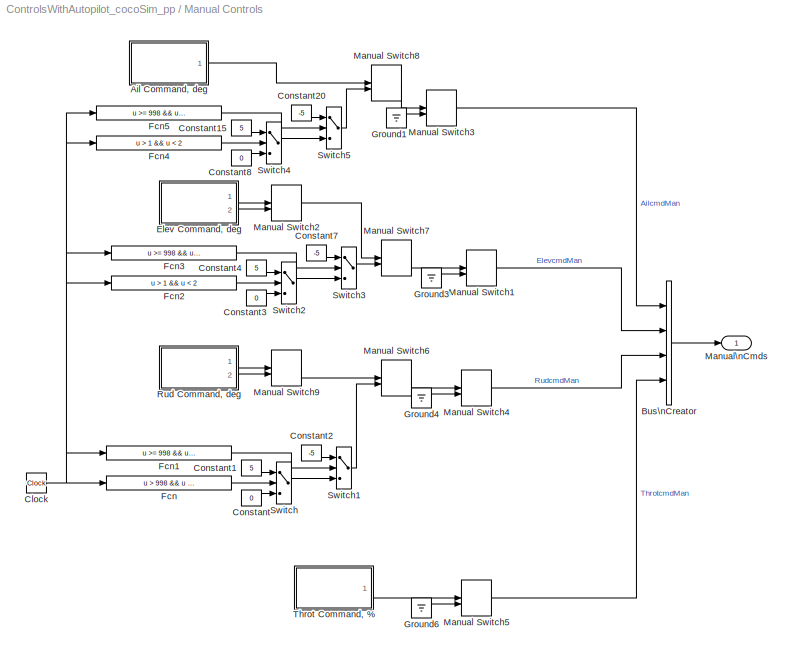
BLOCK [SubSystem] Manual Controls
  Ports = [0, 1]
  RequestExecContextInheritance = off
  SID = 618
  Variant = off
BLOCK [SubSystem] Manual Controls/Ail Command, deg
  ClipboardFcn = sigbuilder_block('clipboard');
  CloseFcn = sigbuilder_block('close');
  ContinueFcn = sigbuilder_block('continue')
  CopyFcn = sigbuilder_block('copy');
  DeleteFcn = sigbuilder_block('delete');
  LoadFcn = sigbuilder_block('load');
  MaskHideContents = on
  ModelCloseFcn = sigbuilder_block('modelClose');
  NameChangeFcn = sigbuilder_block('namechange');
  OpenFcn = sigbuilder_block('open',[20.16 261.12 550.08 400.32 ]);
  PauseFcn = sigbuilder_block('pause')
  Ports = [0, 1]
  PreSaveFcn = sigbuilder_block('preSave');
  RequestExecContextInheritance = off
  SID = 619
  StartFcn = sigbuilder_block('start');
  StopFcn = sigbuilder_block('stop');
  Tag = STV Subsys
  Variant = off
BLOCK [Demux] Manual Controls/Ail Command, deg/Demux
  Outputs = 1
  Ports = [1, 1]
  SID = 620
  Tag = STV Demux
BLOCK [Outport] Manual Controls/Ail Command, deg/Doublet
  IconDisplay = Port number
  SID = 622
  Tag = STV Outport
BLOCK [FromWorkspace] Manual Controls/Ail Command, deg/FromWs
  SID = 621
  SampleTime = 0
  SigBuilderData = DataTag0
  Tag = STV FromWs
  VariableName = tuvar
  VnvData = DataTag1
  ZeroCross = on
BLOCK [BusCreator] Manual Controls/Bus\nCreator
  DisplayOption = bar
  InheritFromInputs = on
  Inputs = 4
  Ports = [4, 1]
  SID = 623
BLOCK [Clock] Manual Controls/Clock
  SID = 624
BLOCK [Constant] Manual Controls/Constant
  SID = 625
  Value = 0
BLOCK [Constant] Manual Controls/Constant1
  SID = 626
  Value = 5
BLOCK [Constant] Manual Controls/Constant15
  SID = 627
  Value = 5
BLOCK [Constant] Manual Controls/Constant2
  SID = 628
  Value = -5
BLOCK [Constant] Manual Controls/Constant20
  SID = 629
  Value = -5
BLOCK [Constant] Manual Controls/Constant3
  SID = 630
  Value = 0
BLOCK [Constant] Manual Controls/Constant4
  SID = 631
  Value = 5
BLOCK [Constant] Manual Controls/Constant7
  SID = 632
  Value = -5
BLOCK [Constant] Manual Controls/Constant8
  SID = 633
  Value = 0
BLOCK [SubSystem] Manual Controls/Elev Command, deg
  ClipboardFcn = sigbuilder_block('clipboard');
  CloseFcn = sigbuilder_block('close');
  ContinueFcn = sigbuilder_block('continue')
  CopyFcn = sigbuilder_block('copy');
  DeleteFcn = sigbuilder_block('delete');
  LoadFcn = sigbuilder_block('load');
  MaskHideContents = on
  ModelCloseFcn = sigbuilder_block('modelClose');
  NameChangeFcn = sigbuilder_block('namechange');
  OpenFcn = sigbuilder_block('open',[550.08 198.72 550.08 400.32 ]);
  PauseFcn = sigbuilder_block('pause')
  Ports = [0, 2]
  PreSaveFcn = sigbuilder_block('preSave');
  RequestExecContextInheritance = off
  SID = 634
  StartFcn = sigbuilder_block('start');
  StopFcn = sigbuilder_block('stop');
  Tag = STV Subsys
  Variant = off
BLOCK [Demux] Manual Controls/Elev Command, deg/Demux
  Outputs = 2
  Ports = [1, 2]
  SID = 635
  Tag = STV Demux
BLOCK [Outport] Manual Controls/Elev Command, deg/Doublet
  IconDisplay = Port number
  SID = 637
  Tag = STV Outport
BLOCK [FromWorkspace] Manual Controls/Elev Command, deg/FromWs
  SID = 636
  SampleTime = 0
  SigBuilderData = DataTag2
  Tag = STV FromWs
  VariableName = tuvar
  VnvData = DataTag3
  ZeroCross = on
BLOCK [Outport] Manual Controls/Elev Command, deg/Pulse
  IconDisplay = Port number
  Port = 2
  SID = 638
  Tag = STV Outport
BLOCK [Fcn] Manual Controls/Fcn
  Expr = u > 998 && u < 999
  SID = 639
BLOCK [Fcn] Manual Controls/Fcn1
  Expr = u >= 998 && u < 999
  SID = 640
BLOCK [Fcn] Manual Controls/Fcn2
  Expr = u > 1 && u < 2
  SID = 641
BLOCK [Fcn] Manual Controls/Fcn3
  Expr = u >= 998 && u < 999
  SID = 642
BLOCK [Fcn] Manual Controls/Fcn4
  Expr = u > 1 && u < 2
  SID = 643
BLOCK [Fcn] Manual Controls/Fcn5
  Expr = u >= 998 && u < 999
  SID = 644
BLOCK [Ground] Manual Controls/Ground1
  SID = 645
BLOCK [Ground] Manual Controls/Ground3
  SID = 646
BLOCK [Ground] Manual Controls/Ground4
  SID = 647
BLOCK [Ground] Manual Controls/Ground6
  SID = 648
BLOCK [ManualSwitch] Manual Controls/Manual Switch1
  CurrentSetting = 0
  SID = 649
BLOCK [ManualSwitch] Manual Controls/Manual Switch2
  SID = 650
BLOCK [ManualSwitch] Manual Controls/Manual Switch3
  CurrentSetting = 0
  SID = 651
BLOCK [ManualSwitch] Manual Controls/Manual Switch4
  CurrentSetting = 0
  SID = 652
BLOCK [ManualSwitch] Manual Controls/Manual Switch5
  SID = 653
BLOCK [ManualSwitch] Manual Controls/Manual Switch6
  SID = 654
BLOCK [ManualSwitch] Manual Controls/Manual Switch7
  CurrentSetting = 0
  SID = 655
BLOCK [ManualSwitch] Manual Controls/Manual Switch8
  SID = 656
BLOCK [ManualSwitch] Manual Controls/Manual Switch9
  SID = 657
BLOCK [Outport] Manual Controls/Manual\nCmds
  IconDisplay = Port number
  SID = 673
BLOCK [SubSystem] Manual Controls/Rud Command, deg
  ClipboardFcn = sigbuilder_block('clipboard');
  CloseFcn = sigbuilder_block('close');
  ContinueFcn = sigbuilder_block('continue')
  CopyFcn = sigbuilder_block('copy');
  DeleteFcn = sigbuilder_block('delete');
  LoadFcn = sigbuilder_block('load');
  MaskHideContents = on
  ModelCloseFcn = sigbuilder_block('modelClose');
  NameChangeFcn = sigbuilder_block('namechange');
  OpenFcn = sigbuilder_block('open',[437.6 199.2 550.4 400 ]);
  PauseFcn = sigbuilder_block('pause')
  Ports = [0, 2]
  PreSaveFcn = sigbuilder_block('preSave');
  RequestExecContextInheritance = off
  SID = 658
  StartFcn = sigbuilder_block('start');
  StopFcn = sigbuilder_block('stop');
  Tag = STV Subsys
  Variant = off
BLOCK [Demux] Manual Controls/Rud Command, deg/Demux
  Outputs = 2
  Ports = [1, 2]
  SID = 659
  Tag = STV Demux
BLOCK [Outport] Manual Controls/Rud Command, deg/Doublet
  IconDisplay = Port number
  SID = 661
  Tag = STV Outport
BLOCK [FromWorkspace] Manual Controls/Rud Command, deg/FromWs
  SID = 660
  SampleTime = 0
  SigBuilderData = DataTag4
  Tag = STV FromWs
  VariableName = tuvar
  VnvData = DataTag5
  ZeroCross = on
BLOCK [Outport] Manual Controls/Rud Command, deg/Pulse
  IconDisplay = Port number
  Port = 2
  SID = 662
  Tag = STV Outport
BLOCK [Switch] Manual Controls/Switch
  InputSameDT = off
  SID = 663
  SaturateOnIntegerOverflow = off
  Threshold = .5
BLOCK [Switch] Manual Controls/Switch1
  InputSameDT = off
  SID = 664
  SaturateOnIntegerOverflow = off
  Threshold = .5
BLOCK [Switch] Manual Controls/Switch2
  InputSameDT = off
  SID = 665
  SaturateOnIntegerOverflow = off
  Threshold = .5
BLOCK [Switch] Manual Controls/Switch3
  InputSameDT = off
  SID = 666
  SaturateOnIntegerOverflow = off
  Threshold = .5
BLOCK [Switch] Manual Controls/Switch4
  InputSameDT = off
  SID = 667
  SaturateOnIntegerOverflow = off
  Threshold = .5
BLOCK [Switch] Manual Controls/Switch5
  InputSameDT = off
  SID = 668
  SaturateOnIntegerOverflow = off
  Threshold = .5
BLOCK [SubSystem] Manual Controls/Throt Command, %
  ClipboardFcn = sigbuilder_block('clipboard');
  CloseFcn = sigbuilder_block('close');
  ContinueFcn = sigbuilder_block('continue')
  CopyFcn = sigbuilder_block('copy');
  DeleteFcn = sigbuilder_block('delete');
  LoadFcn = sigbuilder_block('load');
  MaskHideContents = on
  ModelCloseFcn = sigbuilder_block('modelClose');
  NameChangeFcn = sigbuilder_block('namechange');
  OpenFcn = sigbuilder_block('open',[436.656 201.841 549.567 399.685 ]);
  PauseFcn = sigbuilder_block('pause')
  Ports = [0, 1]
  PreSaveFcn = sigbuilder_block('preSave');
  RequestExecContextInheritance = off
  SID = 669
  StartFcn = sigbuilder_block('start');
  StopFcn = sigbuilder_block('stop');
  Tag = STV Subsys
  Variant = off
BLOCK [Demux] Manual Controls/Throt Command, %/Demux
  Outputs = 1
  Ports = [1, 1]
  SID = 670
  Tag = STV Demux
BLOCK [FromWorkspace] Manual Controls/Throt Command, %/FromWs
  SID = 671
  SampleTime = 0
  SigBuilderData = DataTag6
  Tag = STV FromWs
  VariableName = tuvar
  VnvData = DataTag7
  ZeroCross = on
BLOCK [Outport] Manual Controls/Throt Command, %/Pulse
  IconDisplay = Port number
  SID = 672
  Tag = STV Outport
BLOCK [BusSelector] Select\nManual
  OutputSignals = ElevcmdMan,AilcmdMan,RudcmdMan,ThrotcmdMan
  Ports = [1, 4]
  SID = 397
BLOCK [Inport] Sensors
  IconDisplay = Port number
  SID = 1
BLOCK [Terminator] Terminator
  SID = 529
BLOCK [Terminator] Terminator7
  SID = 420
BLOCK [Constant] YDEngage
  SID = 608
  SampleTime = -1
BLOCK [SubSystem] Yaw Damper
  Ports = [4, 2]
  RequestExecContextInheritance = off
  SID = 421
  Variant = off
BLOCK [Inport] Yaw Damper/CAS
  IconDisplay = Port number
  Port = 2
  SID = 423
BLOCK [Outport] Yaw Damper/DamperCmd
  IconDisplay = Port number
  Port = 2
  SID = 574
BLOCK [Inport] Yaw Damper/Engage
  IconDisplay = Port number
  Port = 4
  SID = 575
BLOCK [SubSystem] Yaw Damper/EngageORzero
  Ports = [2, 1]
  RequestExecContextInheritance = off
  SID = 576
  Variant = off
BLOCK [Inport] Yaw Damper/EngageORzero/Engage
  IconDisplay = Port number
  SID = 577
BLOCK [Inport] Yaw Damper/EngageORzero/In
  IconDisplay = Port number
  Port = 2
  SID = 578
BLOCK [Logic] Yaw Damper/EngageORzero/Logical\nOperator5
  AllPortsSameDT = off
  OutDataTypeStr = boolean
  Ports = [2, 1]
  SID = 579
BLOCK [Outport] Yaw Damper/EngageORzero/Out
  IconDisplay = Port number
  SID = 583
BLOCK [Switch] Yaw Damper/EngageORzero/Switch1
  InputSameDT = off
  SID = 580
  SaturateOnIntegerOverflow = off
  Threshold = 0.5
BLOCK [Constant] Yaw Damper/EngageORzero/zero10
  SID = 581
BLOCK [Constant] Yaw Damper/EngageORzero/zero9
  SID = 582
  Value = 0
BLOCK [Lookup] Yaw Damper/Kcas
  InputValues = [0 120 350 500]
  SID = 424
  SaturateOnIntegerOverflow = off
  Table = [1.0 1.0 0.3 0.3]
BLOCK [Gain] Yaw Damper/Kr
  Gain = 1.25
  OutDataTypeStr = Inherit: Inherit via internal rule
  ParamDataTypeStr = Inherit: Inherit via internal rule
  SID = 425
  SaturateOnIntegerOverflow = off
BLOCK [SubSystem] Yaw Damper/ManualOverride
  Ports = [2, 1]
  RequestExecContextInheritance = off
  SID = 569
  Variant = off
BLOCK [Inport] Yaw Damper/ManualOverride/Auto
  IconDisplay = Port number
  Port = 2
  SID = 571
BLOCK [Inport] Yaw Damper/ManualOverride/Man
  IconDisplay = Port number
  SID = 570
BLOCK [Outport] Yaw Damper/ManualOverride/Out
  IconDisplay = Port number
  SID = 573
BLOCK [Switch] Yaw Damper/ManualOverride/Switch1
  Criteria = u2 ~= 0
  InputSameDT = off
  SID = 572
  SaturateOnIntegerOverflow = off
  Threshold = 0.5
BLOCK [Inport] Yaw Damper/PedalRud
  IconDisplay = Port number
  Port = 3
  SID = 568
BLOCK [Product] Yaw Damper/Product
  InputSameDT = off
  OutDataTypeStr = Inherit: Inherit via internal rule
  Ports = [2, 1]
  SID = 426
  SaturateOnIntegerOverflow = off
BLOCK [Outport] Yaw Damper/RudCmd
  IconDisplay = Port number
  SID = 428
BLOCK [SubSystem] Yaw Damper/YD_wo_pp
  Ports = [1, 1]
  RequestExecContextInheritance = off
  SID = 695
  TreatAsAtomicUnit = on
  Variant = off
BLOCK [UnitDelay] Yaw Damper/YD_wo_pp/D1
  SID = 696
  SampleTime = -1
BLOCK [Gain] Yaw Damper/YD_wo_pp/GainAC1_1
  Gain = -10
  SID = 697
BLOCK [Gain] Yaw Damper/YD_wo_pp/GainAC2_1
  Gain = -10
  SID = 698
BLOCK [Gain] Yaw Damper/YD_wo_pp/GainBD1_1
  SID = 699
BLOCK [Gain] Yaw Damper/YD_wo_pp/GainBD2_1
  SID = 700
BLOCK [Inport] Yaw Damper/YD_wo_pp/Inport1
  IconDisplay = Port number
  SID = 703
BLOCK [Outport] Yaw Damper/YD_wo_pp/Outport1
  IconDisplay = Port number
  SID = 704
BLOCK [Sum] Yaw Damper/YD_wo_pp/Sum1
  Ports = [2, 1]
  SID = 701
BLOCK [Sum] Yaw Damper/YD_wo_pp/Sum2
  Ports = [2, 1]
  SID = 702
BLOCK [Inport] Yaw Damper/rdeg
  IconDisplay = Port number
  SID = 422
BLOCK [Scope] YawDampScope
  NumInputPorts = 3
  Ports = [3]
  SID = 429
  ScopeSpecificationString = C++SS(StrPVP('Location','[104, 387, 551, 759]'),StrPVP('Open','off'),MxPVP('AxesTitles',24,'struct(''axes1'',''%<SignalLabel>'',''axes2'',''%<SignalLabel>'',''axes3'',''%<SignalLabel>'')'),MxPVP('ScopeGraphics',28,'struct(''FigureColor'',''[0.5 0.5 0.5]'',''AxesColor'',''[0 0 0]'',''AxesTickColor'',''[1 1 1]'',''LineColors'',''[1 1 0;1 0 1;0 1 1;1 0 0;0 1 0;0 0 1]'',''LineStyles'',''-|-|-|-|-|-'',...<+318ch>
BLOCK [Constant] maxthrot
  SID = 563
  SampleTime = -1
  Value = 100
BLOCK [Constant] minthrot
  SID = 564
  SampleTime = -1
  Value = 0
BLOCK [Constant] rollLimit
  SID = 617
  SampleTime = -1
  Value = 30
ANNOTATION Heading/Roll InnerLoop: orig = 0.25
ANNOTATION Heading/Roll InnerLoop: orig = 0.8
ANNOTATION Heading/Roll InnerLoop: orig =[0 60 140]
LINE APAltCmd:1 -> Longitudinal:4
LINE APAltEng:1 -> Longitudinal:2
LINE APFPACmd\n:1 -> Longitudinal:1
LINE APFPA\nEng:1 -> Longitudinal:3
LINE APHdgCmd:1 -> Heading:2
LINE APHeadEng:1 -> Heading:1
LINE APThrot\nEng:1 -> AutoThrottle:1
NET AutoThrottle/ATEng:1 -> AutoThrottle/EngageORzero:1, AutoThrottle/Logical\nOperator:1
LINE AutoThrottle/CAScmd:1 -> AutoThrottle/Sum2:1
LINE AutoThrottle/EngageORzero/Engage:1 -> AutoThrottle/EngageORzero/Logical\nOperator5:1
LINE AutoThrottle/EngageORzero/In:1 -> AutoThrottle/EngageORzero/Switch1:1
LINE AutoThrottle/EngageORzero/Logical\nOperator5:1 -> AutoThrottle/EngageORzero/Switch1:2
LINE AutoThrottle/EngageORzero/Switch1:1 -> AutoThrottle/EngageORzero/Out:1
LINE AutoThrottle/EngageORzero/zero10:1 -> AutoThrottle/EngageORzero/Logical\nOperator5:2
LINE AutoThrottle/EngageORzero/zero9:1 -> AutoThrottle/EngageORzero/Switch1:3
LINE AutoThrottle/EngageORzero:1 -> AutoThrottle/ManualOverride:2
LINE AutoThrottle/Gain1:1 -> AutoThrottle/Transfer Fcn_pp:1
LINE AutoThrottle/Gain:1 -> AutoThrottle/Trigonometric\nFunction:1
LINE AutoThrottle/ICthrot1:1 -> AutoThrottle/Sum5:2
LINE AutoThrottle/ICthrot:1 -> AutoThrottle/VarLimIntegAT:5
LINE AutoThrottle/Kcas:1 -> AutoThrottle/PHIMC1:3
LINE AutoThrottle/Kr1:1 -> AutoThrottle/Sum3:2
LINE AutoThrottle/Kr:1 -> AutoThrottle/VarLimIntegAT:1
LINE AutoThrottle/Ktas:1 -> AutoThrottle/PHIMC1:1
LINE AutoThrottle/Lat\nSensors:1 -> AutoThrottle/Gain:1
LINE AutoThrottle/Lat\nSensors:2 -> AutoThrottle/kt2fps1:1
LINE AutoThrottle/Lat\nSensors:3 -> AutoThrottle/Product1:2
LINE AutoThrottle/Lat\nSensors:4 -> AutoThrottle/Sum2:2
NET AutoThrottle/Lat\nSensors:5 -> AutoThrottle/Kr1:1, AutoThrottle/Sum1:3
LINE AutoThrottle/Logical\nOperator:1 -> AutoThrottle/VarLimIntegAT:4
LINE AutoThrottle/MachCmd:1 -> AutoThrottle/Product1:1
LINE AutoThrottle/MachSel:1 -> AutoThrottle/PHIMC1:2
LINE AutoThrottle/ManualOverride/Auto:1 -> AutoThrottle/ManualOverride/Switch1:1
NET AutoThrottle/ManualOverride/Man:1 -> AutoThrottle/ManualOverride/Switch1:2, AutoThrottle/ManualOverride/Switch1:3
LINE AutoThrottle/ManualOverride/Switch1:1 -> AutoThrottle/ManualOverride/Out:1
LINE AutoThrottle/ManualOverride:1 -> AutoThrottle/ThrotCmd:1
LINE AutoThrottle/PHIMC1:1 -> AutoThrottle/Sum1:2
LINE AutoThrottle/Product1:1 -> AutoThrottle/Sum4:1
LINE AutoThrottle/Product:1 -> AutoThrottle/Ktas:1
LINE AutoThrottle/RollComp1:1 -> AutoThrottle/Sum:1
LINE AutoThrottle/Saturation\nDynamic1:1 -> AutoThrottle/Sum5:1
LINE AutoThrottle/Sensors:1 -> AutoThrottle/Lat\nSensors:1
LINE AutoThrottle/Sum1:1 -> AutoThrottle/Kr:1
LINE AutoThrottle/Sum2:1 -> AutoThrottle/kt2fps:1
LINE AutoThrottle/Sum3:1 -> AutoThrottle/Saturation\nDynamic1:2
LINE AutoThrottle/Sum4:1 -> AutoThrottle/Product:2
LINE AutoThrottle/Sum5:1 -> AutoThrottle/EngageORzero:2
LINE AutoThrottle/Sum:1 -> AutoThrottle/Gain1:1
NET AutoThrottle/Transfer Fcn_pp/D1:1 -> AutoThrottle/Transfer Fcn_pp/GainAC1_1:1, AutoThrottle/Transfer Fcn_pp/GainAC2_1:1
LINE AutoThrottle/Transfer Fcn_pp/GainAC1_1:1 -> AutoThrottle/Transfer Fcn_pp/Sum1:1
LINE AutoThrottle/Transfer Fcn_pp/GainAC2_1:1 -> AutoThrottle/Transfer Fcn_pp/Sum2:1
LINE AutoThrottle/Transfer Fcn_pp/GainBD1_1:1 -> AutoThrottle/Transfer Fcn_pp/Sum1:2
LINE AutoThrottle/Transfer Fcn_pp/GainBD2_1:1 -> AutoThrottle/Transfer Fcn_pp/Sum2:2
NET AutoThrottle/Transfer Fcn_pp/Inport1:1 -> AutoThrottle/Transfer Fcn_pp/GainBD1_1:1, AutoThrottle/Transfer Fcn_pp/GainBD2_1:1
LINE AutoThrottle/Transfer Fcn_pp/Sum1:1 -> AutoThrottle/Transfer Fcn_pp/D1:1
LINE AutoThrottle/Transfer Fcn_pp/Sum2:1 -> AutoThrottle/Transfer Fcn_pp/Outport1:1
LINE AutoThrottle/Transfer Fcn_pp:1 -> AutoThrottle/Sum1:1
LINE AutoThrottle/Trigonometric\nFunction:1 -> AutoThrottle/Sum:2
LINE AutoThrottle/VarLimIntegAT/Constant1:1 -> AutoThrottle/VarLimIntegAT/Switch1:1
LINE AutoThrottle/VarLimIntegAT/Constant2:1 -> AutoThrottle/VarLimIntegAT/Relational\nOperator3:2
LINE AutoThrottle/VarLimIntegAT/Constant3:1 -> AutoThrottle/VarLimIntegAT/Relational\nOperator4:2
LINE AutoThrottle/VarLimIntegAT/IC:1 -> AutoThrottle/VarLimIntegAT/Integrator1:3
LINE AutoThrottle/VarLimIntegAT/ICtrig:1 -> AutoThrottle/VarLimIntegAT/Integrator1:2
NET AutoThrottle/VarLimIntegAT/Input:1 -> AutoThrottle/VarLimIntegAT/Relational\nOperator3:1, AutoThrottle/VarLimIntegAT/Relational\nOperator4:1, AutoThrottle/VarLimIntegAT/Switch1:3
NET AutoThrottle/VarLimIntegAT/Integrator1:1 -> AutoThrottle/VarLimIntegAT/Out:1, AutoThrottle/VarLimIntegAT/Relational\nOperator1:1, AutoThrottle/VarLimIntegAT/Relational\nOperator2:1
LINE AutoThrottle/VarLimIntegAT/Logical\nOperator1:1 -> AutoThrottle/VarLimIntegAT/Switch1:2
LINE AutoThrottle/VarLimIntegAT/Logical\nOperator2:1 -> AutoThrottle/VarLimIntegAT/Logical\nOperator1:1
LINE AutoThrottle/VarLimIntegAT/Logical\nOperator3:1 -> AutoThrottle/VarLimIntegAT/Logical\nOperator1:2
LINE AutoThrottle/VarLimIntegAT/Max:1 -> AutoThrottle/VarLimIntegAT/Relational\nOperator2:2
LINE AutoThrottle/VarLimIntegAT/Min:1 -> AutoThrottle/VarLimIntegAT/Relational\nOperator1:2
LINE AutoThrottle/VarLimIntegAT/Relational\nOperator1:1 -> AutoThrottle/VarLimIntegAT/Logical\nOperator3:1
LINE AutoThrottle/VarLimIntegAT/Relational\nOperator2:1 -> AutoThrottle/VarLimIntegAT/Logical\nOperator2:1
LINE AutoThrottle/VarLimIntegAT/Relational\nOperator3:1 -> AutoThrottle/VarLimIntegAT/Logical\nOperator2:2
LINE AutoThrottle/VarLimIntegAT/Relational\nOperator4:1 -> AutoThrottle/VarLimIntegAT/Logical\nOperator3:2
LINE AutoThrottle/VarLimIntegAT/Switch1:1 -> AutoThrottle/VarLimIntegAT/Integrator1:1
LINE AutoThrottle/VarLimIntegAT:1 -> AutoThrottle/Sum3:1
LINE AutoThrottle/kt2fps1:1 -> AutoThrottle/Product:1
LINE AutoThrottle/kt2fps:1 -> AutoThrottle/Kcas:1
LINE AutoThrottle/leverThrot:1 -> AutoThrottle/ManualOverride:1
NET AutoThrottle/maxThrot:1 -> AutoThrottle/Saturation\nDynamic1:1, AutoThrottle/VarLimIntegAT:2
NET AutoThrottle/minThrot:1 -> AutoThrottle/Saturation\nDynamic1:3, AutoThrottle/VarLimIntegAT:3
LINE AutoThrottle/one:1 -> AutoThrottle/Sum4:2
LINE AutoThrottle:1 -> Bus\nCreator:4
LINE Bus\nCreator:1 -> Commands:1
LINE CAScmd:1 -> AutoThrottle:2
LINE Constant3:1 -> Longitudinal:15
LINE Constant4:1 -> Longitudinal:14
LINE Heading/AilStick:1 -> Heading/ManualOverride:1
LINE Heading/CAS:1 -> Heading/Roll InnerLoop:4
LINE Heading/EngageORzero/Engage:1 -> Heading/EngageORzero/Logical\nOperator5:1
LINE Heading/EngageORzero/In:1 -> Heading/EngageORzero/Switch1:1
LINE Heading/EngageORzero/Logical\nOperator5:1 -> Heading/EngageORzero/Switch1:2
LINE Heading/EngageORzero/Switch1:1 -> Heading/EngageORzero/Out:1
LINE Heading/EngageORzero/zero10:1 -> Heading/EngageORzero/Logical\nOperator5:2
LINE Heading/EngageORzero/zero9:1 -> Heading/EngageORzero/Switch1:3
LINE Heading/EngageORzero:1 -> Heading/ManualOverride:2
LINE Heading/Gain1:1 -> Heading/AilCmd:1
LINE Heading/HeadCmd:1 -> Heading/Heading Control:1
NET Heading/HeadEng:1 -> Heading/EngageORzero:1, Heading/Heading Control:6
NET Heading/Heading Control/HdgCmdMCP:1 -> Heading/Heading Control/HdgCmdProcessor:2, Heading/Heading Control/Mux:1
LINE Heading/Heading Control/HdgCmdProcessor/2zetaOmega:1 -> Heading/Heading Control/HdgCmdProcessor/Sum3:2
LINE Heading/Heading Control/HdgCmdProcessor/ANGL/Constant1:1 -> Heading/Heading Control/HdgCmdProcessor/ANGL/Relational\nOperator:2
LINE Heading/Heading Control/HdgCmdProcessor/ANGL/Fcn1:1 -> Heading/Heading Control/HdgCmdProcessor/ANGL/Sum6:1
LINE Heading/Heading Control/HdgCmdProcessor/ANGL/Fcn2:1 -> Heading/Heading Control/HdgCmdProcessor/ANGL/Relational\nOperator:1
LINE Heading/Heading Control/HdgCmdProcessor/ANGL/Relational\nOperator:1 -> Heading/Heading Control/HdgCmdProcessor/ANGL/Switch1:2
LINE Heading/Heading Control/HdgCmdProcessor/ANGL/Sum6:1 -> Heading/Heading Control/HdgCmdProcessor/ANGL/Switch1:1
LINE Heading/Heading Control/HdgCmdProcessor/ANGL/Switch1:1 -> Heading/Heading Control/HdgCmdProcessor/ANGL/+ -180:1
NET Heading/Heading Control/HdgCmdProcessor/ANGL/in:1 -> Heading/Heading Control/HdgCmdProcessor/ANGL/Fcn1:1, Heading/Heading Control/HdgCmdProcessor/ANGL/Fcn2:1, Heading/Heading Control/HdgCmdProcessor/ANGL/Sum6:2, Heading/Heading Control/HdgCmdProcessor/ANGL/Switch1:3
LINE Heading/Heading Control/HdgCmdProcessor/ANGL:1 -> Heading/Heading Control/HdgCmdProcessor/omegaSq2:2
NET Heading/Heading Control/HdgCmdProcessor/Fcn1:1 -> Heading/Heading Control/HdgCmdProcessor/Saturation\nDynamic1:1, Heading/Heading Control/HdgCmdProcessor/k:1
NET Heading/Heading Control/HdgCmdProcessor/Fcn2:1 -> Heading/Heading Control/HdgCmdProcessor/VarLimIntegIC:1, Heading/Heading Control/HdgCmdProcessor/k1:1
NET Heading/Heading Control/HdgCmdProcessor/Fcn:1 -> Heading/Heading Control/HdgCmdProcessor/k6:1, Heading/Heading Control/HdgCmdProcessor/omegaSq:1, Heading/Heading Control/HdgCmdProcessor/omegaSq:2
NET Heading/Heading Control/HdgCmdProcessor/HdgCmdMCP:1 -> Heading/Heading Control/HdgCmdProcessor/HdgCmdScope:4, Heading/Heading Control/HdgCmdProcessor/Logical\nOperator:1, Heading/Heading Control/HdgCmdProcessor/Sum2:1
LINE Heading/Heading Control/HdgCmdProcessor/Heading:1 -> Heading/Heading Control/HdgCmdProcessor/Integrator1:3
NET Heading/Heading Control/HdgCmdProcessor/Integrator1:1 -> Heading/Heading Control/HdgCmdProcessor/HdgCmd:1, Heading/Heading Control/HdgCmdProcessor/HdgCmdScope:3, Heading/Heading Control/HdgCmdProcessor/Sum2:2
NET Heading/Heading Control/HdgCmdProcessor/Logical\nOperator:1 -> Heading/Heading Control/HdgCmdProcessor/Integrator1:2, Heading/Heading Control/HdgCmdProcessor/VarLimIntegIC:4
LINE Heading/Heading Control/HdgCmdProcessor/Mux1:1 -> Heading/Heading Control/HdgCmdProcessor/Fcn2:1
LINE Heading/Heading Control/HdgCmdProcessor/RollLimit:1 -> Heading/Heading Control/HdgCmdProcessor/k3:1
NET Heading/Heading Control/HdgCmdProcessor/Saturation:1 -> Heading/Heading Control/HdgCmdProcessor/Fcn1:1, Heading/Heading Control/HdgCmdProcessor/Fcn:1, Heading/Heading Control/HdgCmdProcessor/Mux1:1
NET Heading/Heading Control/HdgCmdProcessor/Saturation\nDynamic1:1 -> Heading/Heading Control/HdgCmdProcessor/HdgCmdScope:1, Heading/Heading Control/HdgCmdProcessor/VarLimIntegIC:3
LINE Heading/Heading Control/HdgCmdProcessor/Sum2:1 -> Heading/Heading Control/HdgCmdProcessor/ANGL:1
LINE Heading/Heading Control/HdgCmdProcessor/Sum3:1 -> Heading/Heading Control/HdgCmdProcessor/Saturation\nDynamic1:2
LINE Heading/Heading Control/HdgCmdProcessor/Trigonometric\nFunction:1 -> Heading/Heading Control/HdgCmdProcessor/k4:1
LINE Heading/Heading Control/HdgCmdProcessor/VarLimIntegIC/Constant1:1 -> Heading/Heading Control/HdgCmdProcessor/VarLimIntegIC/Relational\nOperator2:2
LINE Heading/Heading Control/HdgCmdProcessor/VarLimIntegIC/Constant2:1 -> Heading/Heading Control/HdgCmdProcessor/VarLimIntegIC/Relational\nOperator3:2
LINE Heading/Heading Control/HdgCmdProcessor/VarLimIntegIC/Constant3:1 -> Heading/Heading Control/HdgCmdProcessor/VarLimIntegIC/Switch3:1
LINE Heading/Heading Control/HdgCmdProcessor/VarLimIntegIC/IC:1 -> Heading/Heading Control/HdgCmdProcessor/VarLimIntegIC/Integrator:3
NET Heading/Heading Control/HdgCmdProcessor/VarLimIntegIC/In:1 -> Heading/Heading Control/HdgCmdProcessor/VarLimIntegIC/Relational\nOperator2:1, Heading/Heading Control/HdgCmdProcessor/VarLimIntegIC/Relational\nOperator3:1, Heading/Heading Control/HdgCmdProcessor/VarLimIntegIC/Switch3:3
NET Heading/Heading Control/HdgCmdProcessor/VarLimIntegIC/Integrator:1 -> Heading/Heading Control/HdgCmdProcessor/VarLimIntegIC/Relational\nOperator:2, Heading/Heading Control/HdgCmdProcessor/VarLimIntegIC/Switch1:3
NET Heading/Heading Control/HdgCmdProcessor/VarLimIntegIC/LoLim:1 -> Heading/Heading Control/HdgCmdProcessor/VarLimIntegIC/Relational\nOperator1:1, Heading/Heading Control/HdgCmdProcessor/VarLimIntegIC/Switch2:1
LINE Heading/Heading Control/HdgCmdProcessor/VarLimIntegIC/Logical\nOperator1:1 -> Heading/Heading Control/HdgCmdProcessor/VarLimIntegIC/Logical\nOperator2:2
LINE Heading/Heading Control/HdgCmdProcessor/VarLimIntegIC/Logical\nOperator2:1 -> Heading/Heading Control/HdgCmdProcessor/VarLimIntegIC/Switch3:2
LINE Heading/Heading Control/HdgCmdProcessor/VarLimIntegIC/Logical\nOperator:1 -> Heading/Heading Control/HdgCmdProcessor/VarLimIntegIC/Logical\nOperator2:1
NET Heading/Heading Control/HdgCmdProcessor/VarLimIntegIC/Relational\nOperator1:1 -> Heading/Heading Control/HdgCmdProcessor/VarLimIntegIC/Logical\nOperator1:2, Heading/Heading Control/HdgCmdProcessor/VarLimIntegIC/Switch2:2
LINE Heading/Heading Control/HdgCmdProcessor/VarLimIntegIC/Relational\nOperator2:1 -> Heading/Heading Control/HdgCmdProcessor/VarLimIntegIC/Logical\nOperator:2
LINE Heading/Heading Control/HdgCmdProcessor/VarLimIntegIC/Relational\nOperator3:1 -> Heading/Heading Control/HdgCmdProcessor/VarLimIntegIC/Logical\nOperator1:1
NET Heading/Heading Control/HdgCmdProcessor/VarLimIntegIC/Relational\nOperator:1 -> Heading/Heading Control/HdgCmdProcessor/VarLimIntegIC/Logical\nOperator:1, Heading/Heading Control/HdgCmdProcessor/VarLimIntegIC/Switch1:2
NET Heading/Heading Control/HdgCmdProcessor/VarLimIntegIC/Switch1:1 -> Heading/Heading Control/HdgCmdProcessor/VarLimIntegIC/Relational\nOperator1:2, Heading/Heading Control/HdgCmdProcessor/VarLimIntegIC/Switch2:3
LINE Heading/Heading Control/HdgCmdProcessor/VarLimIntegIC/Switch2:1 -> Heading/Heading Control/HdgCmdProcessor/VarLimIntegIC/Out:1
LINE Heading/Heading Control/HdgCmdProcessor/VarLimIntegIC/Switch3:1 -> Heading/Heading Control/HdgCmdProcessor/VarLimIntegIC/Integrator:1
LINE Heading/Heading Control/HdgCmdProcessor/VarLimIntegIC/Trig:1 -> Heading/Heading Control/HdgCmdProcessor/VarLimIntegIC/Integrator:2
NET Heading/Heading Control/HdgCmdProcessor/VarLimIntegIC/UpLim:1 -> Heading/Heading Control/HdgCmdProcessor/VarLimIntegIC/Relational\nOperator:1, Heading/Heading Control/HdgCmdProcessor/VarLimIntegIC/Switch1:1
NET Heading/Heading Control/HdgCmdProcessor/VarLimIntegIC:1 -> Heading/Heading Control/HdgCmdProcessor/2zetaOmega:1, Heading/Heading Control/HdgCmdProcessor/HdgCmdScope:2, Heading/Heading Control/HdgCmdProcessor/HdgRteCmd:1, Heading/Heading Control/HdgCmdProcessor/Integrator1:1
LINE Heading/Heading Control/HdgCmdProcessor/Vt:1 -> Heading/Heading Control/HdgCmdProcessor/k2:1
LINE Heading/Heading Control/HdgCmdProcessor/init:1 -> Heading/Heading Control/HdgCmdProcessor/VarLimIntegIC:5
LINE Heading/Heading Control/HdgCmdProcessor/k1:1 -> Heading/Heading Control/HdgCmdProcessor/VarLimIntegIC:2
LINE Heading/Heading Control/HdgCmdProcessor/k2:1 -> Heading/Heading Control/HdgCmdProcessor/Saturation:1
LINE Heading/Heading Control/HdgCmdProcessor/k3:1 -> Heading/Heading Control/HdgCmdProcessor/Trigonometric\nFunction:1
LINE Heading/Heading Control/HdgCmdProcessor/k4:1 -> Heading/Heading Control/HdgCmdProcessor/k5:1
LINE Heading/Heading Control/HdgCmdProcessor/k5:1 -> Heading/Heading Control/HdgCmdProcessor/Mux1:2
LINE Heading/Heading Control/HdgCmdProcessor/k6:1 -> Heading/Heading Control/HdgCmdProcessor/2zetaOmega:2
LINE Heading/Heading Control/HdgCmdProcessor/k:1 -> Heading/Heading Control/HdgCmdProcessor/Saturation\nDynamic1:3
LINE Heading/Heading Control/HdgCmdProcessor/omegaSq2:1 -> Heading/Heading Control/HdgCmdProcessor/Sum3:1
LINE Heading/Heading Control/HdgCmdProcessor/omegaSq:1 -> Heading/Heading Control/HdgCmdProcessor/omegaSq2:1
NET Heading/Heading Control/HdgCmdProcessor:1 -> Heading/Heading Control/Mux:2, Heading/Heading Control/Sum:1
NET Heading/Heading Control/HdgCmdProcessor:2 -> Heading/Heading Control/HdgRollCmdScope:2, Heading/Heading Control/Sum2:1
LINE Heading/Heading Control/HeadEng:1 -> Heading/Heading Control/Logical\nOperator:1
NET Heading/Heading Control/Heading:1 -> Heading/Heading Control/HdgCmdProcessor:3, Heading/Heading Control/Sum:2
LINE Heading/Heading Control/Khdg1:1 -> Heading/Heading Control/MinMax1:2
LINE Heading/Heading Control/Khdg2:1 -> Heading/Heading Control/MinMax:2
LINE Heading/Heading Control/Khdg:1 -> Heading/Heading Control/Sum1:1
NET Heading/Heading Control/Khdgrte:1 -> Heading/Heading Control/HdgRollCmdScope:5, Heading/Heading Control/MinMax1:1
LINE Heading/Heading Control/Logical\nOperator:1 -> Heading/Heading Control/VarLimIntegIC:4
NET Heading/Heading Control/MinMax1:1 -> Heading/Heading Control/HdgRollCmdScope:6, Heading/Heading Control/MinMax:1
NET Heading/Heading Control/MinMax:1 -> Heading/Heading Control/HdgRollCmdScope:7, Heading/Heading Control/VarLimIntegIC:3
LINE Heading/Heading Control/Mux:1 -> Heading/Heading Control/HdgRollCmdScope:1
LINE Heading/Heading Control/Roll:1 -> Heading/Heading Control/VarLimIntegIC:5
NET Heading/Heading Control/RollLimit:1 -> Heading/Heading Control/HdgCmdProcessor:4, Heading/Heading Control/Sum3:2, Heading/Heading Control/Sum4:1, Heading/Heading Control/VarLimIntegIC:1, Heading/Heading Control/sgn:1
LINE Heading/Heading Control/Sum1:1 -> Heading/Heading Control/Khdgrte:1
NET Heading/Heading Control/Sum2:1 -> Heading/Heading Control/HdgRollCmdScope:4, Heading/Heading Control/Sum1:2
LINE Heading/Heading Control/Sum3:1 -> Heading/Heading Control/Khdg1:1
LINE Heading/Heading Control/Sum4:1 -> Heading/Heading Control/Khdg2:1
NET Heading/Heading Control/Sum:1 -> Heading/Heading Control/HdgRollCmdScope:3, Heading/Heading Control/Khdg:1
LINE Heading/Heading Control/VarLimIntegIC/Constant1:1 -> Heading/Heading Control/VarLimIntegIC/Relational\nOperator2:2
LINE Heading/Heading Control/VarLimIntegIC/Constant2:1 -> Heading/Heading Control/VarLimIntegIC/Relational\nOperator3:2
LINE Heading/Heading Control/VarLimIntegIC/Constant3:1 -> Heading/Heading Control/VarLimIntegIC/Switch3:1
LINE Heading/Heading Control/VarLimIntegIC/IC:1 -> Heading/Heading Control/VarLimIntegIC/Integrator:3
NET Heading/Heading Control/VarLimIntegIC/In:1 -> Heading/Heading Control/VarLimIntegIC/Relational\nOperator2:1, Heading/Heading Control/VarLimIntegIC/Relational\nOperator3:1, Heading/Heading Control/VarLimIntegIC/Switch3:3
NET Heading/Heading Control/VarLimIntegIC/Integrator:1 -> Heading/Heading Control/VarLimIntegIC/Relational\nOperator:2, Heading/Heading Control/VarLimIntegIC/Switch1:3
NET Heading/Heading Control/VarLimIntegIC/LoLim:1 -> Heading/Heading Control/VarLimIntegIC/Relational\nOperator1:1, Heading/Heading Control/VarLimIntegIC/Switch2:1
LINE Heading/Heading Control/VarLimIntegIC/Logical\nOperator1:1 -> Heading/Heading Control/VarLimIntegIC/Logical\nOperator2:2
LINE Heading/Heading Control/VarLimIntegIC/Logical\nOperator2:1 -> Heading/Heading Control/VarLimIntegIC/Switch3:2
LINE Heading/Heading Control/VarLimIntegIC/Logical\nOperator:1 -> Heading/Heading Control/VarLimIntegIC/Logical\nOperator2:1
NET Heading/Heading Control/VarLimIntegIC/Relational\nOperator1:1 -> Heading/Heading Control/VarLimIntegIC/Logical\nOperator1:2, Heading/Heading Control/VarLimIntegIC/Switch2:2
LINE Heading/Heading Control/VarLimIntegIC/Relational\nOperator2:1 -> Heading/Heading Control/VarLimIntegIC/Logical\nOperator:2
LINE Heading/Heading Control/VarLimIntegIC/Relational\nOperator3:1 -> Heading/Heading Control/VarLimIntegIC/Logical\nOperator1:1
NET Heading/Heading Control/VarLimIntegIC/Relational\nOperator:1 -> Heading/Heading Control/VarLimIntegIC/Logical\nOperator:1, Heading/Heading Control/VarLimIntegIC/Switch1:2
NET Heading/Heading Control/VarLimIntegIC/Switch1:1 -> Heading/Heading Control/VarLimIntegIC/Relational\nOperator1:2, Heading/Heading Control/VarLimIntegIC/Switch2:3
LINE Heading/Heading Control/VarLimIntegIC/Switch2:1 -> Heading/Heading Control/VarLimIntegIC/Out:1
LINE Heading/Heading Control/VarLimIntegIC/Switch3:1 -> Heading/Heading Control/VarLimIntegIC/Integrator:1
LINE Heading/Heading Control/VarLimIntegIC/Trig:1 -> Heading/Heading Control/VarLimIntegIC/Integrator:2
NET Heading/Heading Control/VarLimIntegIC/UpLim:1 -> Heading/Heading Control/VarLimIntegIC/Relational\nOperator:1, Heading/Heading Control/VarLimIntegIC/Switch1:1
NET Heading/Heading Control/VarLimIntegIC:1 -> Heading/Heading Control/HdgRollCmdScope:8, Heading/Heading Control/RollCmd:1, Heading/Heading Control/Sum3:1, Heading/Heading Control/Sum4:2
LINE Heading/Heading Control/Vt:1 -> Heading/Heading Control/HdgCmdProcessor:1
LINE Heading/Heading Control/psidot:1 -> Heading/Heading Control/Sum2:2
LINE Heading/Heading Control/sgn:1 -> Heading/Heading Control/VarLimIntegIC:2
LINE Heading/Heading Control:1 -> Heading/Roll InnerLoop:1
LINE Heading/Heading:1 -> Heading/Heading Control:2
LINE Heading/ManualOverride/Auto:1 -> Heading/ManualOverride/Switch1:1
NET Heading/ManualOverride/Man:1 -> Heading/ManualOverride/Switch1:2, Heading/ManualOverride/Switch1:3
LINE Heading/ManualOverride/Switch1:1 -> Heading/ManualOverride/Out:1
LINE Heading/ManualOverride:1 -> Heading/Gain1:1
LINE Heading/Roll InnerLoop/CAS:1 -> Heading/Roll InnerLoop/Kcas:1
NET Heading/Roll InnerLoop/Kcas:1 -> Heading/Roll InnerLoop/Product:2, Heading/Roll InnerLoop/Roll_IL_scope:7
LINE Heading/Roll InnerLoop/Kphierr:1 -> Heading/Roll InnerLoop/Sum1:1
NET Heading/Roll InnerLoop/Product:1 -> Heading/Roll InnerLoop/AilCmd:1, Heading/Roll InnerLoop/Roll_IL_scope:6
NET Heading/Roll InnerLoop/Roll:1 -> Heading/Roll InnerLoop/Roll_IL_scope:2, Heading/Roll InnerLoop/Sum:2
NET Heading/Roll InnerLoop/RollCmd:1 -> Heading/Roll InnerLoop/Roll_IL_scope:1, Heading/Roll InnerLoop/Sum:1
LINE Heading/Roll InnerLoop/Sum1:1 -> Heading/Roll InnerLoop/Product:1
NET Heading/Roll InnerLoop/Sum:1 -> Heading/Roll InnerLoop/Kphierr:1, Heading/Roll InnerLoop/Roll_IL_scope:3
NET Heading/Roll InnerLoop/pdeg:1 -> Heading/Roll InnerLoop/Roll_IL_scope:4, Heading/Roll InnerLoop/rollrate_IL:1
NET Heading/Roll InnerLoop/rollrate_IL:1 -> Heading/Roll InnerLoop/Roll_IL_scope:5, Heading/Roll InnerLoop/Sum1:2
LINE Heading/Roll InnerLoop:1 -> Heading/EngageORzero:2
NET Heading/Roll:1 -> Heading/Heading Control:5, Heading/Roll InnerLoop:2
LINE Heading/RollLimit:1 -> Heading/Heading Control:7
LINE Heading/Vt:1 -> Heading/Heading Control:4
LINE Heading/pDeg:1 -> Heading/Roll InnerLoop:3
LINE Heading/psidot:1 -> Heading/Heading Control:3
LINE Heading:1 -> Bus\nCreator:2
LINE Lat\nSensors:1 -> Heading:3
LINE Lat\nSensors:2 -> Heading:4
LINE Lat\nSensors:3 -> Heading:6
LINE Lat\nSensors:4 -> Heading:7
LINE Lat\nSensors:5 -> Heading:8
NET Lat\nSensors:6 -> Yaw Damper:1, YawDampScope:3
LINE Lat\nSensors:7 -> Terminator7:1
LINE Long\nSensors:1 -> Longitudinal:5
LINE Long\nSensors:2 -> Longitudinal:6
LINE Long\nSensors:3 -> Longitudinal:7
LINE Long\nSensors:4 -> Longitudinal:8
LINE Long\nSensors:5 -> Longitudinal:9
LINE Long\nSensors:6 -> Longitudinal:10
LINE Long\nSensors:7 -> Longitudinal:11
NET Long\nSensors:8 -> Heading:5, Longitudinal:12, Yaw Damper:2
LINE Long\nSensors:9 -> Terminator:1
LINE Longitudinal/Alt:1 -> Longitudinal/Altitude Control:3
LINE Longitudinal/AltCmd:1 -> Longitudinal/Altitude Control:2
LINE Longitudinal/Altitude Control/Abs:1 -> Longitudinal/Altitude Control/Sum3:1
NET Longitudinal/Altitude Control/AltCmd:1 -> Longitudinal/Altitude Control/Mux:1, Longitudinal/Altitude Control/Sum:1
NET Longitudinal/Altitude Control/Altitude:1 -> Longitudinal/Altitude Control/Mux:2, Longitudinal/Altitude Control/Sum:2
LINE Longitudinal/Altitude Control/Constant1:1 -> Longitudinal/Altitude Control/Switch:3
LINE Longitudinal/Altitude Control/Divide:1 -> Longitudinal/Altitude Control/r2d:1
LINE Longitudinal/Altitude Control/Kh:1 -> Longitudinal/Altitude Control/Switch:1
LINE Longitudinal/Altitude Control/Logical\nOperator:1 -> Longitudinal/Altitude Control/Variable \nRate Limit:3
LINE Longitudinal/Altitude Control/Mux1:1 -> Longitudinal/Altitude Control/AltCtnlScope:2
LINE Longitudinal/Altitude Control/Mux:1 -> Longitudinal/Altitude Control/AltCtnlScope:1
LINE Longitudinal/Altitude Control/Saturation:1 -> Longitudinal/Altitude Control/Divide:2
NET Longitudinal/Altitude Control/Sum3:1 -> Longitudinal/Altitude Control/Variable Limit\nSaturation:1, Longitudinal/Altitude Control/k:1
LINE Longitudinal/Altitude Control/Sum:1 -> Longitudinal/Altitude Control/Kh:1
LINE Longitudinal/Altitude Control/Switch:1 -> Longitudinal/Altitude Control/Variable Limit\nSaturation:2
LINE Longitudinal/Altitude Control/Variable Limit\nSaturation/Enforce\nlow lim:1 -> Longitudinal/Altitude Control/Variable Limit\nSaturation/Enforce\nup lim:1
LINE Longitudinal/Altitude Control/Variable Limit\nSaturation/Enforce\nup lim:1 -> Longitudinal/Altitude Control/Variable Limit\nSaturation/Out1:1
LINE Longitudinal/Altitude Control/Variable Limit\nSaturation/Lo_lim:1 -> Longitudinal/Altitude Control/Variable Limit\nSaturation/Enforce\nlow lim:1
LINE Longitudinal/Altitude Control/Variable Limit\nSaturation/SigIn:1 -> Longitudinal/Altitude Control/Variable Limit\nSaturation/Enforce\nlow lim:2
LINE Longitudinal/Altitude Control/Variable Limit\nSaturation/up_lim:1 -> Longitudinal/Altitude Control/Variable Limit\nSaturation/Enforce\nup lim:2
NET Longitudinal/Altitude Control/Variable Limit\nSaturation:1 -> Longitudinal/Altitude Control/Mux1:1, Longitudinal/Altitude Control/Variable \nRate Limit:2
LINE Longitudinal/Altitude Control/Variable \nRate Limit/Gain1:1 -> Longitudinal/Altitude Control/Variable \nRate Limit/Variable Limit\nSaturation:3
LINE Longitudinal/Altitude Control/Variable \nRate Limit/Gain:1 -> Longitudinal/Altitude Control/Variable \nRate Limit/Variable Limit\nSaturation:2
LINE Longitudinal/Altitude Control/Variable \nRate Limit/IC:1 -> Longitudinal/Altitude Control/Variable \nRate Limit/Integrator:3
LINE Longitudinal/Altitude Control/Variable \nRate Limit/ICtrig:1 -> Longitudinal/Altitude Control/Variable \nRate Limit/Integrator:2
NET Longitudinal/Altitude Control/Variable \nRate Limit/Integrator:1 -> Longitudinal/Altitude Control/Variable \nRate Limit/Sum2:2, Longitudinal/Altitude Control/Variable \nRate Limit/output:1
LINE Longitudinal/Altitude Control/Variable \nRate Limit/Sum2:1 -> Longitudinal/Altitude Control/Variable \nRate Limit/Gain:1
LINE Longitudinal/Altitude Control/Variable \nRate Limit/Variable Limit\nSaturation/Enforce\nlow lim:1 -> Longitudinal/Altitude Control/Variable \nRate Limit/Variable Limit\nSaturation/Enforce\nup lim:1
LINE Longitudinal/Altitude Control/Variable \nRate Limit/Variable Limit\nSaturation/Enforce\nup lim:1 -> Longitudinal/Altitude Control/Variable \nRate Limit/Variable Limit\nSaturation/Out1:1
LINE Longitudinal/Altitude Control/Variable \nRate Limit/Variable Limit\nSaturation/Lo_lim:1 -> Longitudinal/Altitude Control/Variable \nRate Limit/Variable Limit\nSaturation/Enforce\nlow lim:1
LINE Longitudinal/Altitude Control/Variable \nRate Limit/Variable Limit\nSaturation/SigIn:1 -> Longitudinal/Altitude Control/Variable \nRate Limit/Variable Limit\nSaturation/Enforce\nlow lim:2
LINE Longitudinal/Altitude Control/Variable \nRate Limit/Variable Limit\nSaturation/up_lim:1 -> Longitudinal/Altitude Control/Variable \nRate Limit/Variable Limit\nSaturation/Enforce\nup lim:2
LINE Longitudinal/Altitude Control/Variable \nRate Limit/Variable Limit\nSaturation:1 -> Longitudinal/Altitude Control/Variable \nRate Limit/Integrator:1
LINE Longitudinal/Altitude Control/Variable \nRate Limit/input:1 -> Longitudinal/Altitude Control/Variable \nRate Limit/Sum2:1
NET Longitudinal/Altitude Control/Variable \nRate Limit/ratelim:1 -> Longitudinal/Altitude Control/Variable \nRate Limit/Gain1:1, Longitudinal/Altitude Control/Variable \nRate Limit/Variable Limit\nSaturation:1
NET Longitudinal/Altitude Control/Variable \nRate Limit:1 -> Longitudinal/Altitude Control/Divide:1, Longitudinal/Altitude Control/Mux1:2
NET Longitudinal/Altitude Control/engage:1 -> Longitudinal/Altitude Control/AltCtnlScope:3, Longitudinal/Altitude Control/Logical\nOperator:1, Longitudinal/Altitude Control/Switch:2
LINE Longitudinal/Altitude Control/gskts:1 -> Longitudinal/Altitude Control/kts2fps:1
NET Longitudinal/Altitude Control/hdot:1 -> Longitudinal/Altitude Control/Abs:1, Longitudinal/Altitude Control/Variable \nRate Limit:4
LINE Longitudinal/Altitude Control/hdotChgRate:1 -> Longitudinal/Altitude Control/Variable \nRate Limit:1
LINE Longitudinal/Altitude Control/k:1 -> Longitudinal/Altitude Control/Variable Limit\nSaturation:3
LINE Longitudinal/Altitude Control/kts2fps:1 -> Longitudinal/Altitude Control/Saturation:1
LINE Longitudinal/Altitude Control/maxHdotChg:1 -> Longitudinal/Altitude Control/Sum3:2
LINE Longitudinal/Altitude Control/r2d:1 -> Longitudinal/Altitude Control/altgamcmd:1
LINE Longitudinal/Altitude Control:1 -> Longitudinal/k2:1
NET Longitudinal/AntEng:1 -> Longitudinal/Altitude Control:1, Longitudinal/Logical\nOperator:1
LINE Longitudinal/CAS:1 -> Longitudinal/Pitch InnerLoop:4
LINE Longitudinal/ElevStick:1 -> Longitudinal/ManualOverride:1
LINE Longitudinal/EngageORzero/Engage:1 -> Longitudinal/EngageORzero/Logical\nOperator5:1
LINE Longitudinal/EngageORzero/In:1 -> Longitudinal/EngageORzero/Switch1:1
LINE Longitudinal/EngageORzero/Logical\nOperator5:1 -> Longitudinal/EngageORzero/Switch1:2
LINE Longitudinal/EngageORzero/Switch1:1 -> Longitudinal/EngageORzero/Out:1
LINE Longitudinal/EngageORzero/zero10:1 -> Longitudinal/EngageORzero/Logical\nOperator5:2
LINE Longitudinal/EngageORzero/zero9:1 -> Longitudinal/EngageORzero/Switch1:3
LINE Longitudinal/EngageORzero:1 -> Longitudinal/ManualOverride:2
LINE Longitudinal/FPA Control/Integ_FPA:1 -> Longitudinal/FPA Control/Sum1:1
LINE Longitudinal/FPA Control/KIgamerr:1 -> Longitudinal/FPA Control/Saturation\nDynamic:2
NET Longitudinal/FPA Control/Kgamerr:1 -> Longitudinal/FPA Control/Sum1:2, Longitudinal/FPA Control/Sum:2
LINE Longitudinal/FPA Control/Logical\nOperator:1 -> Longitudinal/FPA Control/Integ_FPA:2
LINE Longitudinal/FPA Control/Mux1:1 -> Longitudinal/FPA Control/FPAScope:3
LINE Longitudinal/FPA Control/Mux:1 -> Longitudinal/FPA Control/FPAScope:2
NET Longitudinal/FPA Control/Product1:1 -> Longitudinal/FPA Control/Saturation\nDynamic:1, Longitudinal/FPA Control/m1:1
NET Longitudinal/FPA Control/Saturation\nDynamic:1 -> Longitudinal/FPA Control/Integ_FPA:1, Longitudinal/FPA Control/Mux1:2
NET Longitudinal/FPA Control/Sum1:1 -> Longitudinal/FPA Control/FPAScope:4, Longitudinal/FPA Control/PitchCmd:1
NET Longitudinal/FPA Control/Sum2:1 -> Longitudinal/FPA Control/KIgamerr:1, Longitudinal/FPA Control/Mux1:1
LINE Longitudinal/FPA Control/Sum:1 -> Longitudinal/FPA Control/Integ_FPA:3
LINE Longitudinal/FPA Control/VT:1 -> Longitudinal/FPA Control/kt2fps:1
NET Longitudinal/FPA Control/engage:1 -> Longitudinal/FPA Control/FPAScope:1, Longitudinal/FPA Control/Logical\nOperator:1
NET Longitudinal/FPA Control/gamcmd:1 -> Longitudinal/FPA Control/Mux:1, Longitudinal/FPA Control/Sum2:1
NET Longitudinal/FPA Control/gamma:1 -> Longitudinal/FPA Control/Kgamerr:1, Longitudinal/FPA Control/Mux:2, Longitudinal/FPA Control/Sum2:2
LINE Longitudinal/FPA Control/hddLim:1 -> Longitudinal/FPA Control/Product1:1
LINE Longitudinal/FPA Control/kt2fps:1 -> Longitudinal/FPA Control/Product1:2
LINE Longitudinal/FPA Control/m1:1 -> Longitudinal/FPA Control/Saturation\nDynamic:3
LINE Longitudinal/FPA Control/thetadeg:1 -> Longitudinal/FPA Control/Sum:1
LINE Longitudinal/FPA Control:1 -> Longitudinal/k5:1
LINE Longitudinal/FPACmd:1 -> Longitudinal/Sum7:1
NET Longitudinal/FpaEng:1 -> Longitudinal/FPA Control:1, Longitudinal/Logical\nOperator:2
LINE Longitudinal/Gamma:1 -> Longitudinal/FPA Control:3
LINE Longitudinal/GsKts:1 -> Longitudinal/Altitude Control:4
LINE Longitudinal/Logical\nOperator:1 -> Longitudinal/EngageORzero:1
LINE Longitudinal/ManualOverride/Auto:1 -> Longitudinal/ManualOverride/Switch1:1
NET Longitudinal/ManualOverride/Man:1 -> Longitudinal/ManualOverride/Switch1:2, Longitudinal/ManualOverride/Switch1:3
LINE Longitudinal/ManualOverride/Switch1:1 -> Longitudinal/ManualOverride/Out:1
LINE Longitudinal/ManualOverride:1 -> Longitudinal/ElevCmd:1
LINE Longitudinal/Pitch InnerLoop/CAS:1 -> Longitudinal/Pitch InnerLoop/Kcas:1
NET Longitudinal/Pitch InnerLoop/Kcas:1 -> Longitudinal/Pitch InnerLoop/PitchScope:6, Longitudinal/Pitch InnerLoop/Product:2
LINE Longitudinal/Pitch InnerLoop/Kpitch:1 -> Longitudinal/Pitch InnerLoop/Sum1:1
NET Longitudinal/Pitch InnerLoop/Kwo:1 -> Longitudinal/Pitch InnerLoop/PitchScope:3, Longitudinal/Pitch InnerLoop/Sum1:2
LINE Longitudinal/Pitch InnerLoop/Mux:1 -> Longitudinal/Pitch InnerLoop/PitchScope:1
NET Longitudinal/Pitch InnerLoop/Pitch:1 -> Longitudinal/Pitch InnerLoop/Mux:2, Longitudinal/Pitch InnerLoop/Sum:2
NET Longitudinal/Pitch InnerLoop/PitchCmd:1 -> Longitudinal/Pitch InnerLoop/Mux:1, Longitudinal/Pitch InnerLoop/Sum:1
NET Longitudinal/Pitch InnerLoop/Product:1 -> Longitudinal/Pitch InnerLoop/ElevCmd:1, Longitudinal/Pitch InnerLoop/PitchScope:5
NET Longitudinal/Pitch InnerLoop/Sum1:1 -> Longitudinal/Pitch InnerLoop/PitchScope:4, Longitudinal/Pitch InnerLoop/Product:1
NET Longitudinal/Pitch InnerLoop/Sum:1 -> Longitudinal/Pitch InnerLoop/Kpitch:1, Longitudinal/Pitch InnerLoop/PitchScope:2
NET Longitudinal/Pitch InnerLoop/Transfer Fcn_pp/D1:1 -> Longitudinal/Pitch InnerLoop/Transfer Fcn_pp/GainAC1_1:1, Longitudinal/Pitch InnerLoop/Transfer Fcn_pp/GainAC2_1:1
LINE Longitudinal/Pitch InnerLoop/Transfer Fcn_pp/GainAC1_1:1 -> Longitudinal/Pitch InnerLoop/Transfer Fcn_pp/Sum1:1
LINE Longitudinal/Pitch InnerLoop/Transfer Fcn_pp/GainAC2_1:1 -> Longitudinal/Pitch InnerLoop/Transfer Fcn_pp/Sum2:1
LINE Longitudinal/Pitch InnerLoop/Transfer Fcn_pp/GainBD1_1:1 -> Longitudinal/Pitch InnerLoop/Transfer Fcn_pp/Sum1:2
LINE Longitudinal/Pitch InnerLoop/Transfer Fcn_pp/GainBD2_1:1 -> Longitudinal/Pitch InnerLoop/Transfer Fcn_pp/Sum2:2
NET Longitudinal/Pitch InnerLoop/Transfer Fcn_pp/Inport1:1 -> Longitudinal/Pitch InnerLoop/Transfer Fcn_pp/GainBD1_1:1, Longitudinal/Pitch InnerLoop/Transfer Fcn_pp/GainBD2_1:1
LINE Longitudinal/Pitch InnerLoop/Transfer Fcn_pp/Sum1:1 -> Longitudinal/Pitch InnerLoop/Transfer Fcn_pp/D1:1
LINE Longitudinal/Pitch InnerLoop/Transfer Fcn_pp/Sum2:1 -> Longitudinal/Pitch InnerLoop/Transfer Fcn_pp/Outport1:1
LINE Longitudinal/Pitch InnerLoop/Transfer Fcn_pp:1 -> Longitudinal/Pitch InnerLoop/Kwo:1
LINE Longitudinal/Pitch InnerLoop/qdeg:1 -> Longitudinal/Pitch InnerLoop/Transfer Fcn_pp:1
LINE Longitudinal/Pitch InnerLoop:1 -> Longitudinal/EngageORzero:2
LINE Longitudinal/Sum7:1 -> Longitudinal/FPA Control:2
LINE Longitudinal/VT:1 -> Longitudinal/FPA Control:5
LINE Longitudinal/hdot:1 -> Longitudinal/Altitude Control:5
LINE Longitudinal/hdotChgRate:1 -> Longitudinal/Altitude Control:6
LINE Longitudinal/k2:1 -> Longitudinal/Sum7:2
LINE Longitudinal/k5:1 -> Longitudinal/Pitch InnerLoop:1
LINE Longitudinal/maxHdotChg:1 -> Longitudinal/Altitude Control:7
LINE Longitudinal/qDeg:1 -> Longitudinal/Pitch InnerLoop:3
NET Longitudinal/thetaDeg:1 -> Longitudinal/FPA Control:4, Longitudinal/Pitch InnerLoop:2
LINE Longitudinal:1 -> Bus\nCreator:1
LINE MachSel:1 -> AutoThrottle:4
LINE Machcmd:1 -> AutoThrottle:3
LINE Manual Controls/Ail Command, deg/Demux:1 -> Manual Controls/Ail Command, deg/Doublet:1
LINE Manual Controls/Ail Command, deg/FromWs:1 -> Manual Controls/Ail Command, deg/Demux:1
LINE Manual Controls/Ail Command, deg:1 -> Manual Controls/Manual Switch8:1
LINE Manual Controls/Bus\nCreator:1 -> Manual Controls/Manual\nCmds:1
NET Manual Controls/Clock:1 -> Manual Controls/Fcn1:1, Manual Controls/Fcn2:1, Manual Controls/Fcn3:1, Manual Controls/Fcn4:1, Manual Controls/Fcn5:1, Manual Controls/Fcn:1
LINE Manual Controls/Constant15:1 -> Manual Controls/Switch4:1
LINE Manual Controls/Constant1:1 -> Manual Controls/Switch:1
LINE Manual Controls/Constant20:1 -> Manual Controls/Switch5:1
LINE Manual Controls/Constant2:1 -> Manual Controls/Switch1:1
LINE Manual Controls/Constant3:1 -> Manual Controls/Switch2:3
LINE Manual Controls/Constant4:1 -> Manual Controls/Switch2:1
LINE Manual Controls/Constant7:1 -> Manual Controls/Switch3:1
LINE Manual Controls/Constant8:1 -> Manual Controls/Switch4:3
LINE Manual Controls/Constant:1 -> Manual Controls/Switch:3
LINE Manual Controls/Elev Command, deg/Demux:1 -> Manual Controls/Elev Command, deg/Doublet:1
LINE Manual Controls/Elev Command, deg/Demux:2 -> Manual Controls/Elev Command, deg/Pulse:1
LINE Manual Controls/Elev Command, deg/FromWs:1 -> Manual Controls/Elev Command, deg/Demux:1
LINE Manual Controls/Elev Command, deg:1 -> Manual Controls/Manual Switch2:1
LINE Manual Controls/Elev Command, deg:2 -> Manual Controls/Manual Switch2:2
LINE Manual Controls/Fcn1:1 -> Manual Controls/Switch1:2
LINE Manual Controls/Fcn2:1 -> Manual Controls/Switch2:2
LINE Manual Controls/Fcn3:1 -> Manual Controls/Switch3:2
LINE Manual Controls/Fcn4:1 -> Manual Controls/Switch4:2
LINE Manual Controls/Fcn5:1 -> Manual Controls/Switch5:2
LINE Manual Controls/Fcn:1 -> Manual Controls/Switch:2
LINE Manual Controls/Ground1:1 -> Manual Controls/Manual Switch3:2
LINE Manual Controls/Ground3:1 -> Manual Controls/Manual Switch1:2
LINE Manual Controls/Ground4:1 -> Manual Controls/Manual Switch4:2
LINE Manual Controls/Ground6:1 -> Manual Controls/Manual Switch5:2
LINE Manual Controls/Manual Switch1:1 -> Manual Controls/Bus\nCreator:2
LINE Manual Controls/Manual Switch2:1 -> Manual Controls/Manual Switch7:1
LINE Manual Controls/Manual Switch3:1 -> Manual Controls/Bus\nCreator:1
LINE Manual Controls/Manual Switch4:1 -> Manual Controls/Bus\nCreator:3
LINE Manual Controls/Manual Switch5:1 -> Manual Controls/Bus\nCreator:4
LINE Manual Controls/Manual Switch6:1 -> Manual Controls/Manual Switch4:1
LINE Manual Controls/Manual Switch7:1 -> Manual Controls/Manual Switch1:1
LINE Manual Controls/Manual Switch8:1 -> Manual Controls/Manual Switch3:1
LINE Manual Controls/Manual Switch9:1 -> Manual Controls/Manual Switch6:1
LINE Manual Controls/Rud Command, deg/Demux:1 -> Manual Controls/Rud Command, deg/Doublet:1
LINE Manual Controls/Rud Command, deg/Demux:2 -> Manual Controls/Rud Command, deg/Pulse:1
LINE Manual Controls/Rud Command, deg/FromWs:1 -> Manual Controls/Rud Command, deg/Demux:1
LINE Manual Controls/Rud Command, deg:1 -> Manual Controls/Manual Switch9:1
LINE Manual Controls/Rud Command, deg:2 -> Manual Controls/Manual Switch9:2
LINE Manual Controls/Switch1:1 -> Manual Controls/Manual Switch6:2
LINE Manual Controls/Switch2:1 -> Manual Controls/Switch3:3
LINE Manual Controls/Switch3:1 -> Manual Controls/Manual Switch7:2
LINE Manual Controls/Switch4:1 -> Manual Controls/Switch5:3
LINE Manual Controls/Switch5:1 -> Manual Controls/Manual Switch8:2
LINE Manual Controls/Switch:1 -> Manual Controls/Switch1:3
LINE Manual Controls/Throt Command, %/Demux:1 -> Manual Controls/Throt Command, %/Pulse:1
LINE Manual Controls/Throt Command, %/FromWs:1 -> Manual Controls/Throt Command, %/Demux:1
LINE Manual Controls/Throt Command, %:1 -> Manual Controls/Manual Switch5:1
LINE Manual Controls:1 -> Select\nManual:1
LINE Select\nManual:1 -> Longitudinal:13
LINE Select\nManual:2 -> Heading:10
NET Select\nManual:3 -> Yaw Damper:3, YawDampScope:1
LINE Select\nManual:4 -> AutoThrottle:8
NET Sensors:1 -> AutoThrottle:5, Lat\nSensors:1, Long\nSensors:1
LINE YDEngage:1 -> Yaw Damper:4
LINE Yaw Damper/CAS:1 -> Yaw Damper/Kcas:1
LINE Yaw Damper/Engage:1 -> Yaw Damper/EngageORzero:1
LINE Yaw Damper/EngageORzero/Engage:1 -> Yaw Damper/EngageORzero/Logical\nOperator5:1
LINE Yaw Damper/EngageORzero/In:1 -> Yaw Damper/EngageORzero/Switch1:1
LINE Yaw Damper/EngageORzero/Logical\nOperator5:1 -> Yaw Damper/EngageORzero/Switch1:2
LINE Yaw Damper/EngageORzero/Switch1:1 -> Yaw Damper/EngageORzero/Out:1
LINE Yaw Damper/EngageORzero/zero10:1 -> Yaw Damper/EngageORzero/Logical\nOperator5:2
LINE Yaw Damper/EngageORzero/zero9:1 -> Yaw Damper/EngageORzero/Switch1:3
NET Yaw Damper/EngageORzero:1 -> Yaw Damper/DamperCmd:1, Yaw Damper/ManualOverride:2
LINE Yaw Damper/Kcas:1 -> Yaw Damper/Product:2
LINE Yaw Damper/Kr:1 -> Yaw Damper/YD_wo_pp:1
LINE Yaw Damper/ManualOverride/Auto:1 -> Yaw Damper/ManualOverride/Switch1:1
NET Yaw Damper/ManualOverride/Man:1 -> Yaw Damper/ManualOverride/Switch1:2, Yaw Damper/ManualOverride/Switch1:3
LINE Yaw Damper/ManualOverride/Switch1:1 -> Yaw Damper/ManualOverride/Out:1
LINE Yaw Damper/ManualOverride:1 -> Yaw Damper/RudCmd:1
LINE Yaw Damper/PedalRud:1 -> Yaw Damper/ManualOverride:1
LINE Yaw Damper/Product:1 -> Yaw Damper/EngageORzero:2
NET Yaw Damper/YD_wo_pp/D1:1 -> Yaw Damper/YD_wo_pp/GainAC1_1:1, Yaw Damper/YD_wo_pp/GainAC2_1:1
LINE Yaw Damper/YD_wo_pp/GainAC1_1:1 -> Yaw Damper/YD_wo_pp/Sum1:1
LINE Yaw Damper/YD_wo_pp/GainAC2_1:1 -> Yaw Damper/YD_wo_pp/Sum2:1
LINE Yaw Damper/YD_wo_pp/GainBD1_1:1 -> Yaw Damper/YD_wo_pp/Sum1:2
LINE Yaw Damper/YD_wo_pp/GainBD2_1:1 -> Yaw Damper/YD_wo_pp/Sum2:2
NET Yaw Damper/YD_wo_pp/Inport1:1 -> Yaw Damper/YD_wo_pp/GainBD1_1:1, Yaw Damper/YD_wo_pp/GainBD2_1:1
LINE Yaw Damper/YD_wo_pp/Sum1:1 -> Yaw Damper/YD_wo_pp/D1:1
LINE Yaw Damper/YD_wo_pp/Sum2:1 -> Yaw Damper/YD_wo_pp/Outport1:1
LINE Yaw Damper/YD_wo_pp:1 -> Yaw Damper/Product:1
LINE Yaw Damper/rdeg:1 -> Yaw Damper/Kr:1
LINE Yaw Damper:1 -> Bus\nCreator:3
LINE Yaw Damper:2 -> YawDampScope:2
LINE maxthrot:1 -> AutoThrottle:6
LINE minthrot:1 -> AutoThrottle:7
LINE rollLimit:1 -> Heading:9
note: NET lines group one-source signal fan-out (src -> all destinations, sorted); 1:1 wires keep LINE
